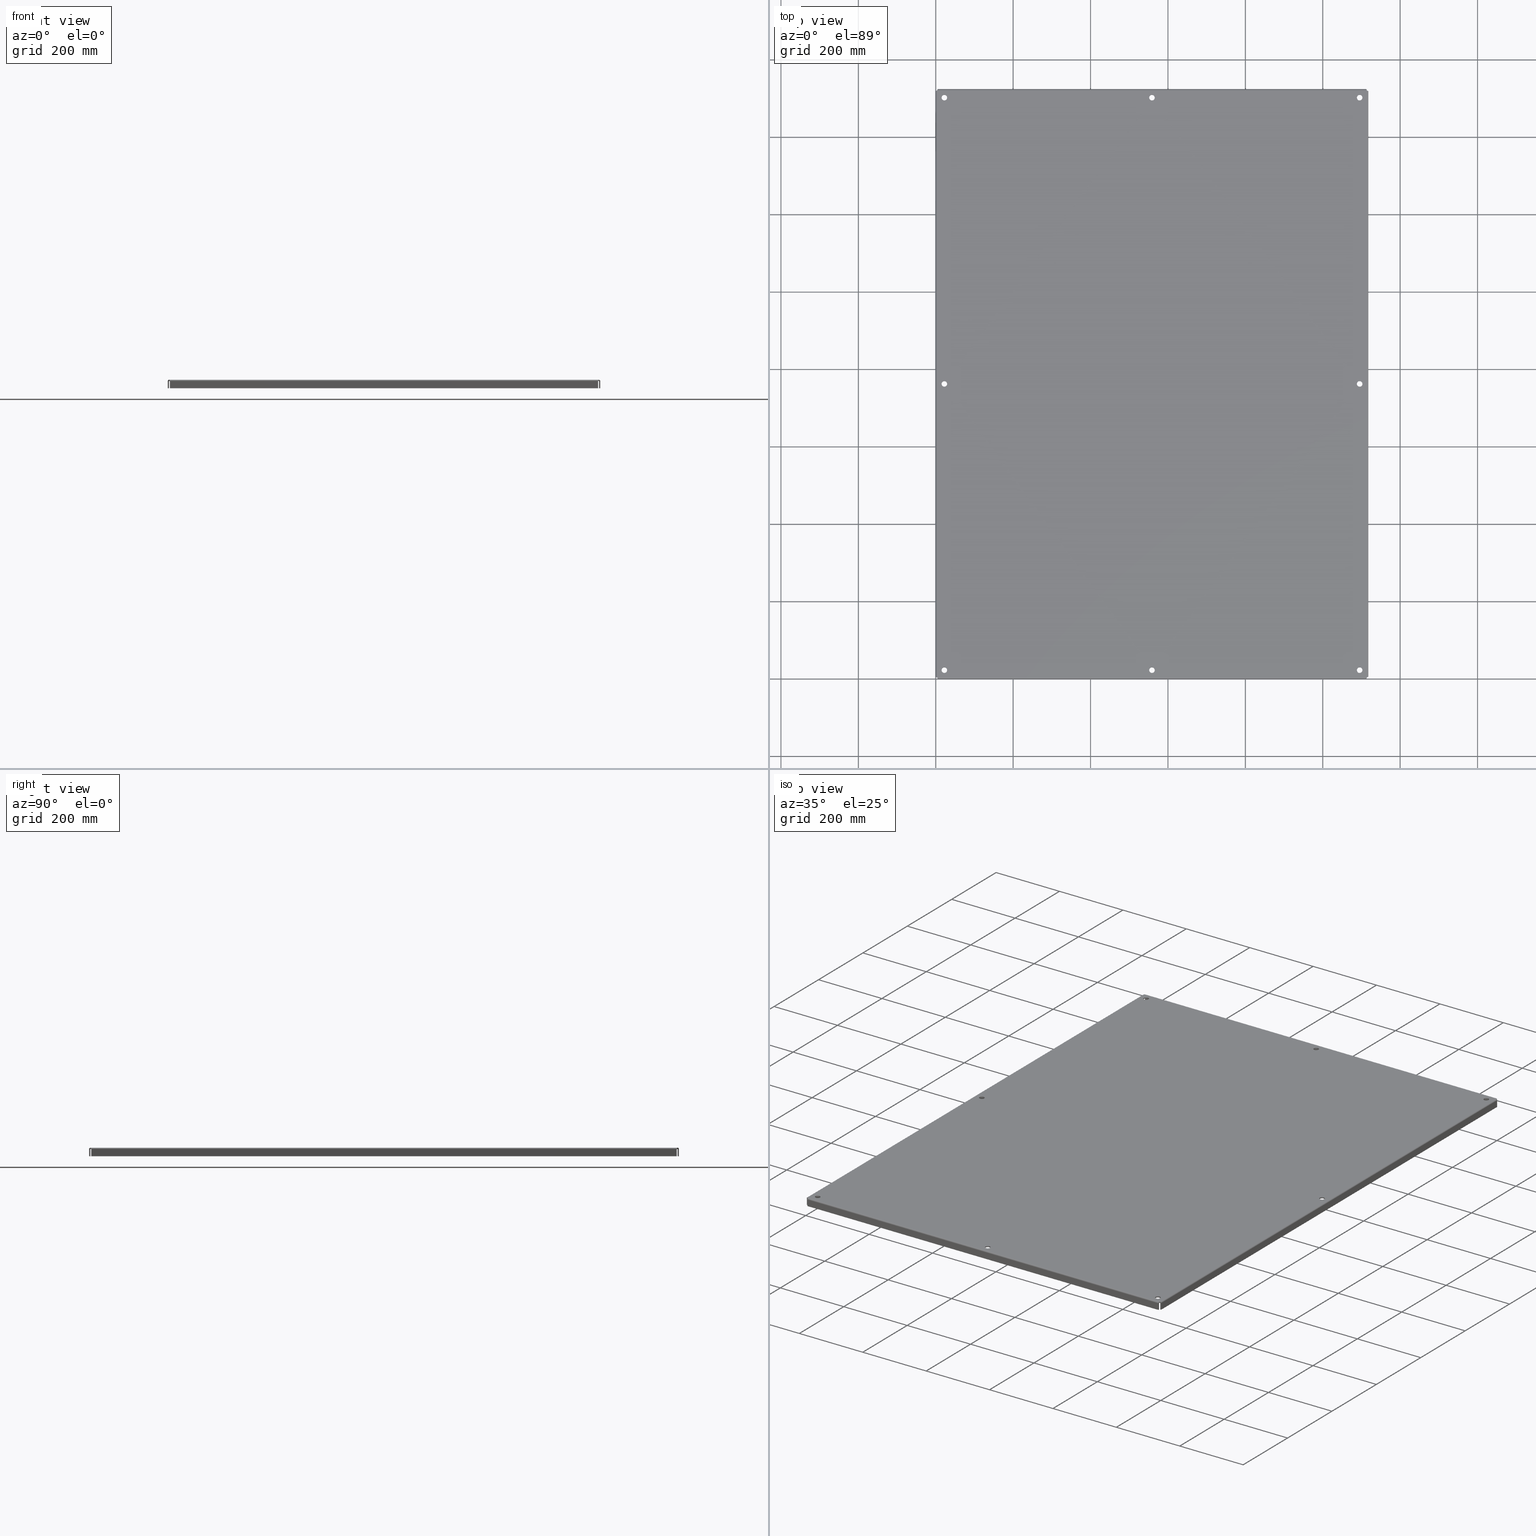
[diagram: canonical four-view strip — front | top / right | iso, engineering-drawing reading convention]
A machine part, canonical four-view strip (front | top / right | iso — engineering-drawing reading convention). The complete STEP part file that produces these views, byte-faithful:
ISO-10303-21;
HEADER;
/****************************************************************
 * Generated by software with PDElib inside                    *
 * PDElib Version v51a, created Wed 07/06/2011                  *
 * ITI Transcendata (http://www.transcendata.com/)              *
 ****************************************************************/
FILE_DESCRIPTION((''),'2;1');
FILE_NAME('C:\\W_Vault\\W-India\\Panels\\WA_F1G & WA_F2G\\WA_P_F_G_DXF STP\\WA72P48F1G.stp','2013-06-19T20:33:03',('ypadmaraja'),(''),'Autodesk Inventor 2012','Autodesk Inventor 2012','');
FILE_SCHEMA(('AUTOMOTIVE_DESIGN { 1 0 10303 214 1 1 1 1 }'));
ENDSEC;
DATA;
#5=APPLICATION_CONTEXT('automotive design');
#6=APPLICATION_PROTOCOL_DEFINITION('International Standard','automotive_design',2001,#5);
#7=PRODUCT_CONTEXT('',#5,'mechanical');
#8=PRODUCT('WA_P_F_G','WA_P_F_G',$,(#7));
#9=PRODUCT_RELATED_PRODUCT_CATEGORY('part',$,(#8));
#10=PRODUCT_DEFINITION_FORMATION('',$,#8);
#11=PRODUCT_DEFINITION_CONTEXT('part definition',#5,'design');
#12=PRODUCT_DEFINITION('',$,#10,#11);
#18=(NAMED_UNIT(*)PLANE_ANGLE_UNIT()SI_UNIT($,.RADIAN.));
#19=DIMENSIONAL_EXPONENTS(0.0,0.0,0.0,0.0,0.0,0.0,0.0);
#20=PLANE_ANGLE_MEASURE_WITH_UNIT(PLANE_ANGLE_MEASURE(0.0174532925),#18);
#24=(CONVERSION_BASED_UNIT('DEGREE',#20)NAMED_UNIT(#19)PLANE_ANGLE_UNIT());
#28=(NAMED_UNIT(*)SI_UNIT($,.STERADIAN.)SOLID_ANGLE_UNIT());
#32=(LENGTH_UNIT()NAMED_UNIT(*)SI_UNIT(.CENTI.,.METRE.));
#33=DIMENSIONAL_EXPONENTS(1.0,0.0,0.0,0.0,0.0,0.0,0.0);
#34=LENGTH_MEASURE_WITH_UNIT(LENGTH_MEASURE(2.54),#32);
#38=(CONVERSION_BASED_UNIT('INCH',#34)LENGTH_UNIT()NAMED_UNIT(#33));
#40=UNCERTAINTY_MEASURE_WITH_UNIT(LENGTH_MEASURE(0.000393700787402),#38,'DISTANCE_ACCURACY_VALUE','');
#42=(GEOMETRIC_REPRESENTATION_CONTEXT(3)GLOBAL_UNCERTAINTY_ASSIGNED_CONTEXT((#40))GLOBAL_UNIT_ASSIGNED_CONTEXT((#24,#28,#38))REPRESENTATION_CONTEXT('None','None'));
#43=AXIS2_PLACEMENT_3D('',#44,#45,#46);
#44=CARTESIAN_POINT('',(0.0,0.0,0.0));
#45=DIRECTION('',(0.0,0.0,1.0));
#46=DIRECTION('',(1.0,0.0,0.0));
#47=SHAPE_REPRESENTATION('',(#43),#42);
#48=PRODUCT_DEFINITION_SHAPE('','',#12);
#49=SHAPE_DEFINITION_REPRESENTATION(#48,#47);
#55=(NAMED_UNIT(*)PLANE_ANGLE_UNIT()SI_UNIT($,.RADIAN.));
#56=DIMENSIONAL_EXPONENTS(0.0,0.0,0.0,0.0,0.0,0.0,0.0);
#57=PLANE_ANGLE_MEASURE_WITH_UNIT(PLANE_ANGLE_MEASURE(0.0174532925),#55);
#61=(CONVERSION_BASED_UNIT('DEGREE',#57)NAMED_UNIT(#56)PLANE_ANGLE_UNIT());
#65=(NAMED_UNIT(*)SI_UNIT($,.STERADIAN.)SOLID_ANGLE_UNIT());
#69=(LENGTH_UNIT()NAMED_UNIT(*)SI_UNIT(.MILLI.,.METRE.));
#71=UNCERTAINTY_MEASURE_WITH_UNIT(LENGTH_MEASURE(0.000001),#69,'DISTANCE_ACCURACY_VALUE','');
#73=(GEOMETRIC_REPRESENTATION_CONTEXT(3)GLOBAL_UNCERTAINTY_ASSIGNED_CONTEXT((#71))GLOBAL_UNIT_ASSIGNED_CONTEXT((#61,#65,#69))REPRESENTATION_CONTEXT('','3D'));
#74=CARTESIAN_POINT('',(22.000000000000043,0.874999999999976,0.0625));
#75=DIRECTION('',(0.0,0.0,1.0));
#76=DIRECTION('',(1.0,0.0,0.0));
#77=AXIS2_PLACEMENT_3D('',#74,#75,#76);
#78=CYLINDRICAL_SURFACE('',#77,0.2815);
#79=CARTESIAN_POINT('',(22.28150000000004,0.874999999999976,0.125));
#80=VERTEX_POINT('',#79);
#81=CARTESIAN_POINT('',(22.000000000000043,0.874999999999976,0.125));
#82=DIRECTION('',(0.0,0.0,-1.0));
#83=DIRECTION('',(1.0,0.0,0.0));
#84=AXIS2_PLACEMENT_3D('',#81,#82,#83);
#85=CIRCLE('',#84,0.2815);
#86=EDGE_CURVE('',#80,#80,#85,.T.);
#87=ORIENTED_EDGE('',*,*,#86,.F.);
#88=EDGE_LOOP('',(#87));
#89=FACE_OUTER_BOUND('',#88,.T.);
#90=CARTESIAN_POINT('',(22.28150000000004,0.874999999999976,0.0));
#91=VERTEX_POINT('',#90);
#92=CARTESIAN_POINT('',(22.000000000000043,0.874999999999976,0.0));
#93=DIRECTION('',(0.0,0.0,1.0));
#94=DIRECTION('',(1.0,0.0,0.0));
#95=AXIS2_PLACEMENT_3D('',#92,#93,#94);
#96=CIRCLE('',#95,0.2815);
#97=EDGE_CURVE('',#91,#91,#96,.T.);
#98=ORIENTED_EDGE('',*,*,#97,.F.);
#99=EDGE_LOOP('',(#98));
#100=FACE_BOUND('',#99,.T.);
#101=ADVANCED_FACE('',(#89,#100),#78,.F.);
#102=CARTESIAN_POINT('',(22.0,59.124999999999993,0.0625));
#103=DIRECTION('',(0.0,0.0,1.0));
#104=DIRECTION('',(1.0,0.0,0.0));
#105=AXIS2_PLACEMENT_3D('',#102,#103,#104);
#106=CYLINDRICAL_SURFACE('',#105,0.2815);
#107=CARTESIAN_POINT('',(22.281499999999998,59.124999999999993,0.125));
#108=VERTEX_POINT('',#107);
#109=CARTESIAN_POINT('',(22.0,59.124999999999993,0.125));
#110=DIRECTION('',(0.0,0.0,-1.0));
#111=DIRECTION('',(1.0,0.0,0.0));
#112=AXIS2_PLACEMENT_3D('',#109,#110,#111);
#113=CIRCLE('',#112,0.2815);
#114=EDGE_CURVE('',#108,#108,#113,.T.);
#115=ORIENTED_EDGE('',*,*,#114,.F.);
#116=EDGE_LOOP('',(#115));
#117=FACE_OUTER_BOUND('',#116,.T.);
#118=CARTESIAN_POINT('',(22.281499999999998,59.124999999999993,0.0));
#119=VERTEX_POINT('',#118);
#120=CARTESIAN_POINT('',(22.0,59.124999999999993,0.0));
#121=DIRECTION('',(0.0,0.0,1.0));
#122=DIRECTION('',(1.0,0.0,0.0));
#123=AXIS2_PLACEMENT_3D('',#120,#121,#122);
#124=CIRCLE('',#123,0.2815);
#125=EDGE_CURVE('',#119,#119,#124,.T.);
#126=ORIENTED_EDGE('',*,*,#125,.F.);
#127=EDGE_LOOP('',(#126));
#128=FACE_BOUND('',#127,.T.);
#129=ADVANCED_FACE('',(#117,#128),#106,.F.);
#130=CARTESIAN_POINT('',(43.125,30.000000000000004,0.0625));
#131=DIRECTION('',(0.0,0.0,1.0));
#132=DIRECTION('',(1.0,0.0,0.0));
#133=AXIS2_PLACEMENT_3D('',#130,#131,#132);
#134=CYLINDRICAL_SURFACE('',#133,0.2815);
#135=CARTESIAN_POINT('',(43.406500000000001,30.000000000000004,0.125));
#136=VERTEX_POINT('',#135);
#137=CARTESIAN_POINT('',(43.125,30.000000000000004,0.125));
#138=DIRECTION('',(0.0,0.0,-1.0));
#139=DIRECTION('',(1.0,0.0,0.0));
#140=AXIS2_PLACEMENT_3D('',#137,#138,#139);
#141=CIRCLE('',#140,0.2815);
#142=EDGE_CURVE('',#136,#136,#141,.T.);
#143=ORIENTED_EDGE('',*,*,#142,.F.);
#144=EDGE_LOOP('',(#143));
#145=FACE_OUTER_BOUND('',#144,.T.);
#146=CARTESIAN_POINT('',(43.406500000000001,30.000000000000004,0.0));
#147=VERTEX_POINT('',#146);
#148=CARTESIAN_POINT('',(43.125,30.000000000000004,0.0));
#149=DIRECTION('',(0.0,0.0,1.0));
#150=DIRECTION('',(1.0,0.0,0.0));
#151=AXIS2_PLACEMENT_3D('',#148,#149,#150);
#152=CIRCLE('',#151,0.2815);
#153=EDGE_CURVE('',#147,#147,#152,.T.);
#154=ORIENTED_EDGE('',*,*,#153,.F.);
#155=EDGE_LOOP('',(#154));
#156=FACE_BOUND('',#155,.T.);
#157=ADVANCED_FACE('',(#145,#156),#134,.F.);
#158=CARTESIAN_POINT('',(0.874999999999991,29.999999999999996,0.0625));
#159=DIRECTION('',(0.0,0.0,1.0));
#160=DIRECTION('',(1.0,0.0,0.0));
#161=AXIS2_PLACEMENT_3D('',#158,#159,#160);
#162=CYLINDRICAL_SURFACE('',#161,0.2815);
#163=CARTESIAN_POINT('',(1.156499999999991,29.999999999999996,0.125));
#164=VERTEX_POINT('',#163);
#165=CARTESIAN_POINT('',(0.874999999999991,29.999999999999996,0.125));
#166=DIRECTION('',(0.0,0.0,-1.0));
#167=DIRECTION('',(1.0,0.0,0.0));
#168=AXIS2_PLACEMENT_3D('',#165,#166,#167);
#169=CIRCLE('',#168,0.2815);
#170=EDGE_CURVE('',#164,#164,#169,.T.);
#171=ORIENTED_EDGE('',*,*,#170,.F.);
#172=EDGE_LOOP('',(#171));
#173=FACE_OUTER_BOUND('',#172,.T.);
#174=CARTESIAN_POINT('',(1.156499999999991,29.999999999999996,0.0));
#175=VERTEX_POINT('',#174);
#176=CARTESIAN_POINT('',(0.874999999999991,29.999999999999996,0.0));
#177=DIRECTION('',(0.0,0.0,1.0));
#178=DIRECTION('',(1.0,0.0,0.0));
#179=AXIS2_PLACEMENT_3D('',#176,#177,#178);
#180=CIRCLE('',#179,0.2815);
#181=EDGE_CURVE('',#175,#175,#180,.T.);
#182=ORIENTED_EDGE('',*,*,#181,.F.);
#183=EDGE_LOOP('',(#182));
#184=FACE_BOUND('',#183,.T.);
#185=ADVANCED_FACE('',(#173,#184),#162,.F.);
#186=CARTESIAN_POINT('',(43.124999999999986,59.124999999999986,0.0625));
#187=DIRECTION('',(0.0,0.0,1.0));
#188=DIRECTION('',(1.0,0.0,0.0));
#189=AXIS2_PLACEMENT_3D('',#186,#187,#188);
#190=CYLINDRICAL_SURFACE('',#189,0.2815);
#191=CARTESIAN_POINT('',(43.406499999999994,59.124999999999986,0.125));
#192=VERTEX_POINT('',#191);
#193=CARTESIAN_POINT('',(43.124999999999986,59.124999999999986,0.125));
#194=DIRECTION('',(0.0,0.0,-1.0));
#195=DIRECTION('',(1.0,0.0,0.0));
#196=AXIS2_PLACEMENT_3D('',#193,#194,#195);
#197=CIRCLE('',#196,0.2815);
#198=EDGE_CURVE('',#192,#192,#197,.T.);
#199=ORIENTED_EDGE('',*,*,#198,.F.);
#200=EDGE_LOOP('',(#199));
#201=FACE_OUTER_BOUND('',#200,.T.);
#202=CARTESIAN_POINT('',(43.406499999999994,59.124999999999986,0.0));
#203=VERTEX_POINT('',#202);
#204=CARTESIAN_POINT('',(43.124999999999986,59.124999999999986,0.0));
#205=DIRECTION('',(0.0,0.0,1.0));
#206=DIRECTION('',(1.0,0.0,0.0));
#207=AXIS2_PLACEMENT_3D('',#204,#205,#206);
#208=CIRCLE('',#207,0.2815);
#209=EDGE_CURVE('',#203,#203,#208,.T.);
#210=ORIENTED_EDGE('',*,*,#209,.F.);
#211=EDGE_LOOP('',(#210));
#212=FACE_BOUND('',#211,.T.);
#213=ADVANCED_FACE('',(#201,#212),#190,.F.);
#214=CARTESIAN_POINT('',(0.874999999999982,59.124999999999993,0.0625));
#215=DIRECTION('',(0.0,0.0,1.0));
#216=DIRECTION('',(1.0,0.0,0.0));
#217=AXIS2_PLACEMENT_3D('',#214,#215,#216);
#218=CYLINDRICAL_SURFACE('',#217,0.2815);
#219=CARTESIAN_POINT('',(1.156499999999982,59.124999999999993,0.125));
#220=VERTEX_POINT('',#219);
#221=CARTESIAN_POINT('',(0.874999999999982,59.124999999999993,0.125));
#222=DIRECTION('',(0.0,0.0,-1.0));
#223=DIRECTION('',(1.0,0.0,0.0));
#224=AXIS2_PLACEMENT_3D('',#221,#222,#223);
#225=CIRCLE('',#224,0.2815);
#226=EDGE_CURVE('',#220,#220,#225,.T.);
#227=ORIENTED_EDGE('',*,*,#226,.F.);
#228=EDGE_LOOP('',(#227));
#229=FACE_OUTER_BOUND('',#228,.T.);
#230=CARTESIAN_POINT('',(1.156499999999982,59.124999999999993,0.0));
#231=VERTEX_POINT('',#230);
#232=CARTESIAN_POINT('',(0.874999999999982,59.124999999999993,0.0));
#233=DIRECTION('',(0.0,0.0,1.0));
#234=DIRECTION('',(1.0,0.0,0.0));
#235=AXIS2_PLACEMENT_3D('',#232,#233,#234);
#236=CIRCLE('',#235,0.2815);
#237=EDGE_CURVE('',#231,#231,#236,.T.);
#238=ORIENTED_EDGE('',*,*,#237,.F.);
#239=EDGE_LOOP('',(#238));
#240=FACE_BOUND('',#239,.T.);
#241=ADVANCED_FACE('',(#229,#240),#218,.F.);
#242=CARTESIAN_POINT('',(0.874999999999976,0.875,0.0625));
#243=DIRECTION('',(0.0,0.0,1.0));
#244=DIRECTION('',(1.0,0.0,0.0));
#245=AXIS2_PLACEMENT_3D('',#242,#243,#244);
#246=CYLINDRICAL_SURFACE('',#245,0.2815);
#247=CARTESIAN_POINT('',(1.156499999999976,0.875,0.125));
#248=VERTEX_POINT('',#247);
#249=CARTESIAN_POINT('',(0.874999999999976,0.875,0.125));
#250=DIRECTION('',(0.0,0.0,-1.0));
#251=DIRECTION('',(1.0,0.0,0.0));
#252=AXIS2_PLACEMENT_3D('',#249,#250,#251);
#253=CIRCLE('',#252,0.2815);
#254=EDGE_CURVE('',#248,#248,#253,.T.);
#255=ORIENTED_EDGE('',*,*,#254,.F.);
#256=EDGE_LOOP('',(#255));
#257=FACE_OUTER_BOUND('',#256,.T.);
#258=CARTESIAN_POINT('',(1.156499999999976,0.875,0.0));
#259=VERTEX_POINT('',#258);
#260=CARTESIAN_POINT('',(0.874999999999976,0.875,0.0));
#261=DIRECTION('',(0.0,0.0,1.0));
#262=DIRECTION('',(1.0,0.0,0.0));
#263=AXIS2_PLACEMENT_3D('',#260,#261,#262);
#264=CIRCLE('',#263,0.2815);
#265=EDGE_CURVE('',#259,#259,#264,.T.);
#266=ORIENTED_EDGE('',*,*,#265,.F.);
#267=EDGE_LOOP('',(#266));
#268=FACE_BOUND('',#267,.T.);
#269=ADVANCED_FACE('',(#257,#268),#246,.F.);
#270=CARTESIAN_POINT('',(43.124999999999986,0.875,0.0625));
#271=DIRECTION('',(0.0,0.0,1.0));
#272=DIRECTION('',(1.0,0.0,0.0));
#273=AXIS2_PLACEMENT_3D('',#270,#271,#272);
#274=CYLINDRICAL_SURFACE('',#273,0.2815);
#275=CARTESIAN_POINT('',(43.406499999999994,0.875,0.125));
#276=VERTEX_POINT('',#275);
#277=CARTESIAN_POINT('',(43.124999999999986,0.875,0.125));
#278=DIRECTION('',(0.0,0.0,-1.0));
#279=DIRECTION('',(1.0,0.0,0.0));
#280=AXIS2_PLACEMENT_3D('',#277,#278,#279);
#281=CIRCLE('',#280,0.2815);
#282=EDGE_CURVE('',#276,#276,#281,.T.);
#283=ORIENTED_EDGE('',*,*,#282,.F.);
#284=EDGE_LOOP('',(#283));
#285=FACE_OUTER_BOUND('',#284,.T.);
#286=CARTESIAN_POINT('',(43.406499999999994,0.875,0.0));
#287=VERTEX_POINT('',#286);
#288=CARTESIAN_POINT('',(43.124999999999986,0.875,0.0));
#289=DIRECTION('',(0.0,0.0,1.0));
#290=DIRECTION('',(1.0,0.0,0.0));
#291=AXIS2_PLACEMENT_3D('',#288,#289,#290);
#292=CIRCLE('',#291,0.2815);
#293=EDGE_CURVE('',#287,#287,#292,.T.);
#294=ORIENTED_EDGE('',*,*,#293,.F.);
#295=EDGE_LOOP('',(#294));
#296=FACE_BOUND('',#295,.T.);
#297=ADVANCED_FACE('',(#285,#296),#274,.F.);
#298=CARTESIAN_POINT('',(43.859400000000008,59.786611652351674,-0.0156));
#299=DIRECTION('',(-9.324708E-017,1.0,0.0));
#300=DIRECTION('',(1.0,0.0,4.032876E-013));
#301=AXIS2_PLACEMENT_3D('',#298,#299,#300);
#302=CYLINDRICAL_SURFACE('',#301,0.140599999999988);
#303=CARTESIAN_POINT('',(43.999999999999986,59.786611652351674,-0.015599999999968));
#304=VERTEX_POINT('',#303);
#305=CARTESIAN_POINT('',(44.000000000000014,0.213388347648325,-0.015599999999985));
#306=VERTEX_POINT('',#305);
#307=CARTESIAN_POINT('',(43.999999999999993,59.786611652351674,-0.015599999999985));
#308=DIRECTION('',(0.0,-1.0,0.0));
#309=VECTOR('',#308,59.573223304703347);
#310=LINE('',#307,#309);
#311=EDGE_CURVE('',#304,#306,#310,.T.);
#312=ORIENTED_EDGE('',*,*,#311,.F.);
#313=CARTESIAN_POINT('',(43.859400000000001,59.859400000000008,0.125));
#314=VERTEX_POINT('',#313);
#315=CARTESIAN_POINT('',(43.859400000000008,59.859400000000015,0.125));
#316=CARTESIAN_POINT('',(43.901467421628062,59.845535552828906,0.125));
#317=CARTESIAN_POINT('',(43.943063501461324,59.83167110565779,0.104805586453239));
#318=CARTESIAN_POINT('',(43.969295107484136,59.817806658486688,0.072082524297426));
#319=CARTESIAN_POINT('',(43.988968812001247,59.807408323108348,0.047540227680567));
#320=CARTESIAN_POINT('',(43.999999999999986,59.797009987730014,0.015950566221115));
#321=CARTESIAN_POINT('',(44.000000000000007,59.786611652351674,-0.015599999999927));
#322=B_SPLINE_CURVE_WITH_KNOTS('',3,(#315,#316,#317,#318,#319,#320,#321),.UNSPECIFIED.,.F.,.U.,(4,3,4),(0.0,0.897597901025439,1.570796326794518),.UNSPECIFIED.);
#323=EDGE_CURVE('',#314,#304,#322,.T.);
#324=ORIENTED_EDGE('',*,*,#323,.F.);
#325=CARTESIAN_POINT('',(43.859400000000008,0.1406,0.125));
#326=VERTEX_POINT('',#325);
#327=CARTESIAN_POINT('',(43.859400000000001,0.140599999999999,0.125));
#328=DIRECTION('',(0.0,1.0,0.0));
#329=VECTOR('',#328,59.718800000000009);
#330=LINE('',#327,#329);
#331=EDGE_CURVE('',#326,#314,#330,.T.);
#332=ORIENTED_EDGE('',*,*,#331,.F.);
#333=CARTESIAN_POINT('',(44.000000000000028,0.213388347648326,-0.015599999999991));
#334=CARTESIAN_POINT('',(44.000000000000028,0.199523900477216,0.026467421628086));
#335=CARTESIAN_POINT('',(43.979805707770929,0.185659453306106,0.068063647025484));
#336=CARTESIAN_POINT('',(43.947082628283987,0.171795006134996,0.094295232253428));
#337=CARTESIAN_POINT('',(43.922540318668773,0.161396670756665,0.113968921174384));
#338=CARTESIAN_POINT('',(43.890950566221044,0.150998335378334,0.125000000000024));
#339=CARTESIAN_POINT('',(43.85939999999998,0.140600000000002,0.125000000000018));
#340=B_SPLINE_CURVE_WITH_KNOTS('',3,(#333,#334,#335,#336,#337,#338,#339),.UNSPECIFIED.,.F.,.U.,(4,3,4),(0.0,0.8975979010257,1.570796326794921),.UNSPECIFIED.);
#341=EDGE_CURVE('',#306,#326,#340,.T.);
#342=ORIENTED_EDGE('',*,*,#341,.F.);
#343=EDGE_LOOP('',(#312,#324,#332,#342));
#344=FACE_OUTER_BOUND('',#343,.T.);
#345=ADVANCED_FACE('',(#344),#302,.T.);
#346=CARTESIAN_POINT('',(43.875000000000021,29.999999999999996,-0.338477516194013));
#347=DIRECTION('',(1.0,0.0,0.0));
#348=DIRECTION('',(0.0,0.0,-1.0));
#349=AXIS2_PLACEMENT_3D('',#346,#347,#348);
#350=PLANE('',#349);
#351=CARTESIAN_POINT('',(43.875000000000021,0.213388347648325,-0.01559999999999));
#352=VERTEX_POINT('',#351);
#353=CARTESIAN_POINT('',(43.874999999999986,59.786611652351674,-0.015599999999973));
#354=VERTEX_POINT('',#353);
#355=CARTESIAN_POINT('',(43.875000000000014,0.213388347648326,-0.015599999999996));
#356=DIRECTION('',(0.0,1.0,0.0));
#357=VECTOR('',#356,59.573223304703347);
#358=LINE('',#355,#357);
#359=EDGE_CURVE('',#352,#354,#358,.T.);
#360=ORIENTED_EDGE('',*,*,#359,.T.);
#361=CARTESIAN_POINT('',(43.875000000000028,59.786611652351674,-0.749999999999972));
#362=VERTEX_POINT('',#361);
#363=CARTESIAN_POINT('',(43.874999999999986,59.786611652351674,-0.015599999999973));
#364=DIRECTION('',(0.0,0.0,-1.0));
#365=VECTOR('',#364,0.734399999999999);
#366=LINE('',#363,#365);
#367=EDGE_CURVE('',#354,#362,#366,.T.);
#368=ORIENTED_EDGE('',*,*,#367,.T.);
#369=CARTESIAN_POINT('',(43.875000000000064,0.213388347648329,-0.749999999999995));
#370=VERTEX_POINT('',#369);
#371=CARTESIAN_POINT('',(43.875000000000028,59.786611652351674,-0.749999999999972));
#372=DIRECTION('',(0.0,-1.0,0.0));
#373=VECTOR('',#372,59.57322330470334);
#374=LINE('',#371,#373);
#375=EDGE_CURVE('',#362,#370,#374,.T.);
#376=ORIENTED_EDGE('',*,*,#375,.T.);
#377=CARTESIAN_POINT('',(43.875000000000014,0.213388347648329,-0.015599999999996));
#378=DIRECTION('',(0.0,0.0,-1.0));
#379=VECTOR('',#378,0.734399999999999);
#380=LINE('',#377,#379);
#381=EDGE_CURVE('',#352,#370,#380,.T.);
#382=ORIENTED_EDGE('',*,*,#381,.F.);
#383=EDGE_LOOP('',(#360,#368,#376,#382));
#384=FACE_OUTER_BOUND('',#383,.T.);
#385=ADVANCED_FACE('',(#384),#350,.F.);
#386=CARTESIAN_POINT('',(43.875000000000064,0.213388347648329,-0.749999999999995));
#387=DIRECTION('',(0.0,-1.0,0.0));
#388=DIRECTION('',(-1.0,0.0,0.0));
#389=AXIS2_PLACEMENT_3D('',#386,#387,#388);
#390=PLANE('',#389);
#391=CARTESIAN_POINT('',(44.000000000000064,0.213388347648329,-0.749999999999989));
#392=VERTEX_POINT('',#391);
#393=CARTESIAN_POINT('',(44.000000000000057,0.213388347648329,-0.749999999999989));
#394=DIRECTION('',(0.0,0.0,1.0));
#395=VECTOR('',#394,0.734399999999999);
#396=LINE('',#393,#395);
#397=EDGE_CURVE('',#392,#306,#396,.T.);
#398=ORIENTED_EDGE('',*,*,#397,.T.);
#399=CARTESIAN_POINT('',(43.875000000000021,0.213388347648325,-0.01559999999999));
#400=DIRECTION('',(1.0,0.0,0.0));
#401=VECTOR('',#400,0.124999999999993);
#402=LINE('',#399,#401);
#403=EDGE_CURVE('',#352,#306,#402,.T.);
#404=ORIENTED_EDGE('',*,*,#403,.F.);
#405=ORIENTED_EDGE('',*,*,#381,.T.);
#406=CARTESIAN_POINT('',(43.875000000000064,0.213388347648329,-0.749999999999995));
#407=DIRECTION('',(1.0,0.0,0.0));
#408=VECTOR('',#407,0.125);
#409=LINE('',#406,#408);
#410=EDGE_CURVE('',#370,#392,#409,.T.);
#411=ORIENTED_EDGE('',*,*,#410,.T.);
#412=EDGE_LOOP('',(#398,#404,#405,#411));
#413=FACE_OUTER_BOUND('',#412,.T.);
#414=ADVANCED_FACE('',(#413),#390,.T.);
#415=CARTESIAN_POINT('',(43.85939999999998,0.1406,0.125000000000018));
#416=CARTESIAN_POINT('',(43.859399999999987,0.1406,0.083333333333345));
#417=CARTESIAN_POINT('',(43.859399999999994,0.1406,0.041666666666673));
#418=CARTESIAN_POINT('',(43.859400000000008,0.1406,2.731848E-018));
#419=CARTESIAN_POINT('',(43.890950566221036,0.150998335378332,0.125000000000025));
#420=CARTESIAN_POINT('',(43.881600588085362,0.150998335378332,0.08333333333335));
#421=CARTESIAN_POINT('',(43.872250609949681,0.150998335378332,0.041666666666676));
#422=CARTESIAN_POINT('',(43.862900631814007,0.150998335378332,7.986834E-016));
#423=CARTESIAN_POINT('',(43.964659988599095,0.175261117927774,0.099260816073533));
#424=CARTESIAN_POINT('',(43.933466298284046,0.175261117927774,0.065221930323908));
#425=CARTESIAN_POINT('',(43.902272607969003,0.175261117927774,0.031183044574283));
#426=CARTESIAN_POINT('',(43.871078917653954,0.175261117927774,-0.002855841175342));
#427=CARTESIAN_POINT('',(44.000000000000028,0.199523900477216,0.026467421628086));
#428=CARTESIAN_POINT('',(43.95833333333335,0.199523900477216,0.014000784113835));
#429=CARTESIAN_POINT('',(43.916666666666679,0.199523900477216,0.001534146599585));
#430=CARTESIAN_POINT('',(43.875000000000007,0.199523900477216,-0.010932490914665));
#431=CARTESIAN_POINT('',(44.000000000000028,0.213388347648326,-0.015599999999991));
#432=CARTESIAN_POINT('',(43.95833333333335,0.213388347648326,-0.015599999999994));
#433=CARTESIAN_POINT('',(43.916666666666679,0.213388347648326,-0.015599999999996));
#434=CARTESIAN_POINT('',(43.875000000000007,0.213388347648326,-0.015599999999999));
#435=B_SPLINE_SURFACE_WITH_KNOTS('',3,3,((#415,#419,#423,#427,#431),(#416,#420,#424,#428,#432),(#417,#421,#425,#429,#433),(#418,#422,#426,#430,#434)),.UNSPECIFIED.,.F.,.F.,.F.,(4,4),(4,1,4),(-0.3175,4.596353E-014),(-0.288776537863598,-0.165015164493484,0.0),.UNSPECIFIED.);
#436=ORIENTED_EDGE('',*,*,#341,.T.);
#437=CARTESIAN_POINT('',(43.859400000000001,0.1406,0.030738501310888));
#438=VERTEX_POINT('',#437);
#439=CARTESIAN_POINT('',(43.859400000000008,0.1406,0.030738501310888));
#440=DIRECTION('',(0.0,0.0,1.0));
#441=VECTOR('',#440,0.094261498689112);
#442=LINE('',#439,#441);
#443=EDGE_CURVE('',#438,#326,#442,.T.);
#444=ORIENTED_EDGE('',*,*,#443,.F.);
#445=CARTESIAN_POINT('',(43.859400000000008,0.1406,0.0));
#446=VERTEX_POINT('',#445);
#447=CARTESIAN_POINT('',(43.859400000000008,0.1406,0.0));
#448=DIRECTION('',(0.0,0.0,1.0));
#449=VECTOR('',#448,0.030738501310888);
#450=LINE('',#447,#449);
#451=EDGE_CURVE('',#446,#438,#450,.T.);
#452=ORIENTED_EDGE('',*,*,#451,.F.);
#453=CARTESIAN_POINT('',(43.859400000000008,0.1406,0.0));
#454=CARTESIAN_POINT('',(43.862900631814007,0.150998335378332,7.976996E-016));
#455=CARTESIAN_POINT('',(43.866405611459697,0.161396670756664,-0.001223931932289));
#456=CARTESIAN_POINT('',(43.869128655769778,0.171795006134996,-0.003406787886534));
#457=CARTESIAN_POINT('',(43.872759381516545,0.185659453306106,-0.006317262492195));
#458=CARTESIAN_POINT('',(43.875000000000007,0.199523900477216,-0.010932490914665));
#459=CARTESIAN_POINT('',(43.875000000000007,0.213388347648326,-0.015599999999999));
#460=B_SPLINE_CURVE_WITH_KNOTS('',3,(#453,#454,#455,#456,#457,#458,#459),.UNSPECIFIED.,.F.,.U.,(4,3,4),(0.0,0.673198425769252,1.570796326794921),.UNSPECIFIED.);
#461=EDGE_CURVE('',#446,#352,#460,.T.);
#462=ORIENTED_EDGE('',*,*,#461,.T.);
#463=ORIENTED_EDGE('',*,*,#403,.T.);
#464=EDGE_LOOP('',(#436,#444,#452,#462,#463));
#465=FACE_OUTER_BOUND('',#464,.T.);
#466=ADVANCED_FACE('',(#465),#435,.T.);
#467=CARTESIAN_POINT('',(44.000000000000007,59.786611652351674,-0.015599999999927));
#468=CARTESIAN_POINT('',(43.958333333333329,59.786611652351674,-0.015599999999949));
#469=CARTESIAN_POINT('',(43.916666666666664,59.786611652351674,-0.01559999999997));
#470=CARTESIAN_POINT('',(43.874999999999993,59.786611652351674,-0.015599999999992));
#471=CARTESIAN_POINT('',(43.999999999999986,59.797009987730014,0.015950566221115));
#472=CARTESIAN_POINT('',(43.958333333333321,59.797009987730014,0.006600588085412));
#473=CARTESIAN_POINT('',(43.916666666666657,59.797009987730014,-0.002749390050292));
#474=CARTESIAN_POINT('',(43.874999999999993,59.797009987730014,-0.012099368185996));
#475=CARTESIAN_POINT('',(43.974260561336273,59.821272770279464,0.089659776293168));
#476=CARTESIAN_POINT('',(43.940221751077772,59.821272770279464,0.058466148894762));
#477=CARTESIAN_POINT('',(43.906182940819285,59.821272770279464,0.027272521496356));
#478=CARTESIAN_POINT('',(43.872144130560784,59.821272770279464,-0.003921105902049));
#479=CARTESIAN_POINT('',(43.901467421628062,59.845535552828906,0.125));
#480=CARTESIAN_POINT('',(43.889000784113819,59.845535552828906,0.083333333333328));
#481=CARTESIAN_POINT('',(43.876534146599575,59.845535552828906,0.041666666666657));
#482=CARTESIAN_POINT('',(43.864067509085331,59.845535552828906,-1.497326E-014));
#483=CARTESIAN_POINT('',(43.859400000000008,59.859400000000015,0.125));
#484=CARTESIAN_POINT('',(43.859400000000008,59.859400000000015,0.083333333333328));
#485=CARTESIAN_POINT('',(43.859400000000008,59.859400000000015,0.041666666666657));
#486=CARTESIAN_POINT('',(43.859400000000008,59.859400000000015,-1.497326E-014));
#487=B_SPLINE_SURFACE_WITH_KNOTS('',3,3,((#467,#471,#475,#479,#483),(#468,#472,#476,#480,#484),(#469,#473,#477,#481,#485),(#470,#474,#478,#482,#486)),.UNSPECIFIED.,.F.,.F.,.F.,(4,4),(4,1,4),(-0.3175,3.802484E-014),(-0.288776537863541,-0.165015164493452,0.0),.UNSPECIFIED.);
#488=ORIENTED_EDGE('',*,*,#323,.T.);
#489=CARTESIAN_POINT('',(43.874999999999986,59.786611652351674,-0.015599999999973));
#490=DIRECTION('',(1.0,0.0,0.0));
#491=VECTOR('',#490,0.125000000000007);
#492=LINE('',#489,#491);
#493=EDGE_CURVE('',#354,#304,#492,.T.);
#494=ORIENTED_EDGE('',*,*,#493,.F.);
#495=CARTESIAN_POINT('',(43.859400000000001,59.859400000000008,0.0));
#496=VERTEX_POINT('',#495);
#497=CARTESIAN_POINT('',(43.859400000000008,59.859400000000015,0.0));
#498=CARTESIAN_POINT('',(43.864067509085338,59.845535552828906,3.453297E-016));
#499=CARTESIAN_POINT('',(43.868682721357025,59.83167110565779,-0.002240631944021));
#500=CARTESIAN_POINT('',(43.871593198269942,59.817806658486688,-0.005871355767853));
#501=CARTESIAN_POINT('',(43.873776055954629,59.807408323108348,-0.008594398635725));
#502=CARTESIAN_POINT('',(43.875000000000007,59.797009987730021,-0.012099368185989));
#503=CARTESIAN_POINT('',(43.875000000000007,59.786611652351688,-0.015599999999989));
#504=B_SPLINE_CURVE_WITH_KNOTS('',3,(#497,#498,#499,#500,#501,#502,#503),.UNSPECIFIED.,.F.,.U.,(4,3,4),(0.0,0.897597901025555,1.570796326794518),.UNSPECIFIED.);
#505=EDGE_CURVE('',#496,#354,#504,.T.);
#506=ORIENTED_EDGE('',*,*,#505,.F.);
#507=CARTESIAN_POINT('',(43.859400000000008,59.859400000000015,0.030738501310895));
#508=VERTEX_POINT('',#507);
#509=CARTESIAN_POINT('',(43.859400000000001,59.859400000000008,0.0));
#510=DIRECTION('',(0.0,0.0,1.0));
#511=VECTOR('',#510,0.030738501310895);
#512=LINE('',#509,#511);
#513=EDGE_CURVE('',#496,#508,#512,.T.);
#514=ORIENTED_EDGE('',*,*,#513,.T.);
#515=CARTESIAN_POINT('',(43.859400000000001,59.859400000000008,0.030738501310895));
#516=DIRECTION('',(0.0,0.0,1.0));
#517=VECTOR('',#516,0.094261498689105);
#518=LINE('',#515,#517);
#519=EDGE_CURVE('',#508,#314,#518,.T.);
#520=ORIENTED_EDGE('',*,*,#519,.T.);
#521=EDGE_LOOP('',(#488,#494,#506,#514,#520));
#522=FACE_OUTER_BOUND('',#521,.T.);
#523=ADVANCED_FACE('',(#522),#487,.T.);
#524=CARTESIAN_POINT('',(43.874999999999986,59.786611652351674,-0.015599999999973));
#525=DIRECTION('',(0.0,1.0,0.0));
#526=DIRECTION('',(1.0,0.0,0.0));
#527=AXIS2_PLACEMENT_3D('',#524,#525,#526);
#528=PLANE('',#527);
#529=CARTESIAN_POINT('',(44.000000000000036,59.786611652351674,-0.749999999999967));
#530=VERTEX_POINT('',#529);
#531=CARTESIAN_POINT('',(43.999999999999979,59.786611652351674,-0.015599999999968));
#532=DIRECTION('',(0.0,0.0,-1.0));
#533=VECTOR('',#532,0.734399999999999);
#534=LINE('',#531,#533);
#535=EDGE_CURVE('',#304,#530,#534,.T.);
#536=ORIENTED_EDGE('',*,*,#535,.T.);
#537=CARTESIAN_POINT('',(43.875000000000028,59.786611652351674,-0.749999999999972));
#538=DIRECTION('',(1.0,0.0,0.0));
#539=VECTOR('',#538,0.125000000000007);
#540=LINE('',#537,#539);
#541=EDGE_CURVE('',#362,#530,#540,.T.);
#542=ORIENTED_EDGE('',*,*,#541,.F.);
#543=ORIENTED_EDGE('',*,*,#367,.F.);
#544=ORIENTED_EDGE('',*,*,#493,.T.);
#545=EDGE_LOOP('',(#536,#542,#543,#544));
#546=FACE_OUTER_BOUND('',#545,.T.);
#547=ADVANCED_FACE('',(#546),#528,.T.);
#548=CARTESIAN_POINT('',(43.875000000000028,59.786611652351674,-0.749999999999972));
#549=DIRECTION('',(0.0,0.0,-1.0));
#550=DIRECTION('',(-1.0,0.0,0.0));
#551=AXIS2_PLACEMENT_3D('',#548,#549,#550);
#552=PLANE('',#551);
#553=CARTESIAN_POINT('',(44.000000000000028,59.786611652351674,-0.749999999999967));
#554=DIRECTION('',(0.0,-1.0,0.0));
#555=VECTOR('',#554,59.57322330470334);
#556=LINE('',#553,#555);
#557=EDGE_CURVE('',#530,#392,#556,.T.);
#558=ORIENTED_EDGE('',*,*,#557,.T.);
#559=ORIENTED_EDGE('',*,*,#410,.F.);
#560=ORIENTED_EDGE('',*,*,#375,.F.);
#561=ORIENTED_EDGE('',*,*,#541,.T.);
#562=EDGE_LOOP('',(#558,#559,#560,#561));
#563=FACE_OUTER_BOUND('',#562,.T.);
#564=ADVANCED_FACE('',(#563),#552,.T.);
#565=CARTESIAN_POINT('',(44.000000000000021,29.999999999999996,-0.338477516194002));
#566=DIRECTION('',(1.0,0.0,0.0));
#567=DIRECTION('',(0.0,0.0,-1.0));
#568=AXIS2_PLACEMENT_3D('',#565,#566,#567);
#569=PLANE('',#568);
#570=ORIENTED_EDGE('',*,*,#311,.T.);
#571=ORIENTED_EDGE('',*,*,#397,.F.);
#572=ORIENTED_EDGE('',*,*,#557,.F.);
#573=ORIENTED_EDGE('',*,*,#535,.F.);
#574=EDGE_LOOP('',(#570,#571,#572,#573));
#575=FACE_OUTER_BOUND('',#574,.T.);
#576=ADVANCED_FACE('',(#575),#569,.T.);
#577=CARTESIAN_POINT('',(43.859400000000008,0.213388347648326,-0.0156));
#578=DIRECTION('',(-9.324708E-017,1.0,0.0));
#579=DIRECTION('',(1.0,0.0,0.0));
#580=AXIS2_PLACEMENT_3D('',#577,#578,#579);
#581=CYLINDRICAL_SURFACE('',#580,0.015600000000013);
#582=ORIENTED_EDGE('',*,*,#359,.F.);
#583=ORIENTED_EDGE('',*,*,#461,.F.);
#584=CARTESIAN_POINT('',(43.859400000000001,59.859400000000008,0.0));
#585=DIRECTION('',(0.0,-1.0,0.0));
#586=VECTOR('',#585,59.718800000000009);
#587=LINE('',#584,#586);
#588=EDGE_CURVE('',#496,#446,#587,.T.);
#589=ORIENTED_EDGE('',*,*,#588,.F.);
#590=ORIENTED_EDGE('',*,*,#505,.T.);
#591=EDGE_LOOP('',(#582,#583,#589,#590));
#592=FACE_OUTER_BOUND('',#591,.T.);
#593=ADVANCED_FACE('',(#592),#581,.F.);
#594=CARTESIAN_POINT('',(0.213388347648303,59.859400000000008,-0.0156));
#595=DIRECTION('',(-1.0,0.0,0.0));
#596=DIRECTION('',(0.0,1.0,-1.651350E-013));
#597=AXIS2_PLACEMENT_3D('',#594,#595,#596);
#598=CYLINDRICAL_SURFACE('',#597,0.1406);
#599=CARTESIAN_POINT('',(0.213388347648303,59.999999999999993,-0.015600000000024));
#600=VERTEX_POINT('',#599);
#601=CARTESIAN_POINT('',(43.786611652351681,59.999999999999993,-0.015600000000024));
#602=VERTEX_POINT('',#601);
#603=CARTESIAN_POINT('',(0.213388347648305,59.999999999999993,-0.015600000000024));
#604=DIRECTION('',(1.0,0.0,0.0));
#605=VECTOR('',#604,43.573223304703376);
#606=LINE('',#603,#605);
#607=EDGE_CURVE('',#600,#602,#606,.T.);
#608=ORIENTED_EDGE('',*,*,#607,.F.);
#609=CARTESIAN_POINT('',(0.140599999999982,59.859399999999994,0.125));
#610=VERTEX_POINT('',#609);
#611=CARTESIAN_POINT('',(0.14059999999998,59.859400000000008,0.125));
#612=CARTESIAN_POINT('',(0.150998335378312,59.890950566221065,0.125));
#613=CARTESIAN_POINT('',(0.161396670756644,59.922540276608558,0.113968870708008));
#614=CARTESIAN_POINT('',(0.171795006134976,59.947082580215159,0.094295174577568));
#615=CARTESIAN_POINT('',(0.185659453306081,59.979805651690604,0.068063579736989));
#616=CARTESIAN_POINT('',(0.199523900477187,60.000000000000007,0.026467421628068));
#617=CARTESIAN_POINT('',(0.213388347648293,60.000000000000007,-0.015599999999992));
#618=B_SPLINE_CURVE_WITH_KNOTS('',3,(#611,#612,#613,#614,#615,#616,#617),.UNSPECIFIED.,.F.,.U.,(4,3,4),(0.0,0.673198425769348,1.570796326794921),.UNSPECIFIED.);
#619=EDGE_CURVE('',#610,#600,#618,.T.);
#620=ORIENTED_EDGE('',*,*,#619,.F.);
#621=CARTESIAN_POINT('',(43.859399999999994,59.859400000000008,0.125));
#622=DIRECTION('',(-1.0,0.0,0.0));
#623=VECTOR('',#622,43.718800000000016);
#624=LINE('',#621,#623);
#625=EDGE_CURVE('',#314,#610,#624,.T.);
#626=ORIENTED_EDGE('',*,*,#625,.F.);
#627=CARTESIAN_POINT('',(43.786611652351681,60.000000000000007,-0.015600000000023));
#628=CARTESIAN_POINT('',(43.80047609952279,60.000000000000014,0.026467421628047));
#629=CARTESIAN_POINT('',(43.814340546693892,59.979805586452407,0.068063501460316));
#630=CARTESIAN_POINT('',(43.828204993865,59.94708252429669,0.094295107483282));
#631=CARTESIAN_POINT('',(43.838603329243327,59.92254022767991,0.113968812000502));
#632=CARTESIAN_POINT('',(43.84900166462166,59.890950566221072,0.124999999999994));
#633=CARTESIAN_POINT('',(43.859399999999987,59.859400000000029,0.125));
#634=B_SPLINE_CURVE_WITH_KNOTS('',3,(#627,#628,#629,#630,#631,#632,#633),.UNSPECIFIED.,.F.,.U.,(4,3,4),(0.0,0.897597901025775,1.570796326794921),.UNSPECIFIED.);
#635=EDGE_CURVE('',#602,#314,#634,.T.);
#636=ORIENTED_EDGE('',*,*,#635,.F.);
#637=EDGE_LOOP('',(#608,#620,#626,#636));
#638=FACE_OUTER_BOUND('',#637,.T.);
#639=ADVANCED_FACE('',(#638),#598,.T.);
#640=CARTESIAN_POINT('',(21.999999999999989,59.87499999999995,-0.338242214570114));
#641=DIRECTION('',(1.318482E-018,1.0,-1.656616E-013));
#642=DIRECTION('',(1.0,0.0,0.0));
#643=AXIS2_PLACEMENT_3D('',#640,#641,#642);
#644=PLANE('',#643);
#645=CARTESIAN_POINT('',(43.786611652351681,59.874999999999993,-0.015600000000001));
#646=VERTEX_POINT('',#645);
#647=CARTESIAN_POINT('',(0.213388347648303,59.874999999999993,-0.015600000000001));
#648=VERTEX_POINT('',#647);
#649=CARTESIAN_POINT('',(43.786611652351681,59.874999999999993,-0.015600000000001));
#650=DIRECTION('',(-1.0,0.0,0.0));
#651=VECTOR('',#650,43.573223304703376);
#652=LINE('',#649,#651);
#653=EDGE_CURVE('',#646,#648,#652,.T.);
#654=ORIENTED_EDGE('',*,*,#653,.T.);
#655=CARTESIAN_POINT('',(0.213388347648303,59.874999999999872,-0.75));
#656=VERTEX_POINT('',#655);
#657=CARTESIAN_POINT('',(0.213388347648303,59.874999999999993,-0.015600000000001));
#658=DIRECTION('',(0.0,-1.644775E-013,-1.0));
#659=VECTOR('',#658,0.734399999999999);
#660=LINE('',#657,#659);
#661=EDGE_CURVE('',#648,#656,#660,.T.);
#662=ORIENTED_EDGE('',*,*,#661,.T.);
#663=CARTESIAN_POINT('',(43.786611652351681,59.874999999999872,-0.75));
#664=VERTEX_POINT('',#663);
#665=CARTESIAN_POINT('',(0.213388347648303,59.874999999999872,-0.75));
#666=DIRECTION('',(1.0,0.0,0.0));
#667=VECTOR('',#666,43.573223304703376);
#668=LINE('',#665,#667);
#669=EDGE_CURVE('',#656,#664,#668,.T.);
#670=ORIENTED_EDGE('',*,*,#669,.T.);
#671=CARTESIAN_POINT('',(43.786611652351681,59.874999999999993,-0.015600000000001));
#672=DIRECTION('',(0.0,-1.644775E-013,-1.0));
#673=VECTOR('',#672,0.734399999999999);
#674=LINE('',#671,#673);
#675=EDGE_CURVE('',#646,#664,#674,.T.);
#676=ORIENTED_EDGE('',*,*,#675,.F.);
#677=EDGE_LOOP('',(#654,#662,#670,#676));
#678=FACE_OUTER_BOUND('',#677,.T.);
#679=ADVANCED_FACE('',(#678),#644,.F.);
#680=CARTESIAN_POINT('',(43.786611652351681,59.874999999999872,-0.75));
#681=DIRECTION('',(1.0,0.0,0.0));
#682=DIRECTION('',(0.0,-1.0,1.651400E-013));
#683=AXIS2_PLACEMENT_3D('',#680,#681,#682);
#684=PLANE('',#683);
#685=CARTESIAN_POINT('',(43.786611652351681,59.999999999999879,-0.750000000000023));
#686=VERTEX_POINT('',#685);
#687=CARTESIAN_POINT('',(43.786611652351681,59.999999999999872,-0.750000000000023));
#688=DIRECTION('',(0.0,1.644775E-013,1.0));
#689=VECTOR('',#688,0.734399999999999);
#690=LINE('',#687,#689);
#691=EDGE_CURVE('',#686,#602,#690,.T.);
#692=ORIENTED_EDGE('',*,*,#691,.T.);
#693=CARTESIAN_POINT('',(43.786611652351681,59.874999999999993,-0.015600000000001));
#694=DIRECTION('',(0.0,1.0,-1.651457E-013));
#695=VECTOR('',#694,0.125);
#696=LINE('',#693,#695);
#697=EDGE_CURVE('',#646,#602,#696,.T.);
#698=ORIENTED_EDGE('',*,*,#697,.F.);
#699=ORIENTED_EDGE('',*,*,#675,.T.);
#700=CARTESIAN_POINT('',(43.786611652351681,59.874999999999872,-0.75));
#701=DIRECTION('',(0.0,1.0,-1.652012E-013));
#702=VECTOR('',#701,0.125000000000007);
#703=LINE('',#700,#702);
#704=EDGE_CURVE('',#664,#686,#703,.T.);
#705=ORIENTED_EDGE('',*,*,#704,.T.);
#706=EDGE_LOOP('',(#692,#698,#699,#705));
#707=FACE_OUTER_BOUND('',#706,.T.);
#708=ADVANCED_FACE('',(#707),#684,.T.);
#709=CARTESIAN_POINT('',(43.859400000000001,59.859400000000008,0.125000000000001));
#710=CARTESIAN_POINT('',(43.859400000000001,59.859400000000008,0.083333333333334));
#711=CARTESIAN_POINT('',(43.859400000000001,59.859400000000008,0.041666666666667));
#712=CARTESIAN_POINT('',(43.859400000000001,59.859400000000008,2.731848E-018));
#713=CARTESIAN_POINT('',(43.849001664621667,59.890950566221065,0.125000000000001));
#714=CARTESIAN_POINT('',(43.849001664621667,59.881600588085377,0.083333333333334));
#715=CARTESIAN_POINT('',(43.849001664621667,59.872250609949688,0.041666666666667));
#716=CARTESIAN_POINT('',(43.849001664621667,59.862900631814007,2.731848E-018));
#717=CARTESIAN_POINT('',(43.824738882072225,59.96465977629169,0.099260561334517));
#718=CARTESIAN_POINT('',(43.824738882072225,59.933466148893721,0.06522175107654));
#719=CARTESIAN_POINT('',(43.824738882072225,59.902272521495753,0.031182940818563));
#720=CARTESIAN_POINT('',(43.824738882072225,59.871078894097799,-0.002855869439414));
#721=CARTESIAN_POINT('',(43.80047609952279,60.000000000000014,0.026467421628048));
#722=CARTESIAN_POINT('',(43.80047609952279,59.958333333333343,0.014000784113809));
#723=CARTESIAN_POINT('',(43.80047609952279,59.916666666666671,0.00153414659957));
#724=CARTESIAN_POINT('',(43.80047609952279,59.875000000000007,-0.010932490914669));
#725=CARTESIAN_POINT('',(43.786611652351681,60.000000000000007,-0.015600000000023));
#726=CARTESIAN_POINT('',(43.786611652351681,59.958333333333343,-0.015600000000016));
#727=CARTESIAN_POINT('',(43.786611652351681,59.916666666666671,-0.015600000000009));
#728=CARTESIAN_POINT('',(43.786611652351681,59.875000000000007,-0.015600000000003));
#729=B_SPLINE_SURFACE_WITH_KNOTS('',3,3,((#709,#713,#717,#721,#725),(#710,#714,#718,#722,#726),(#711,#715,#719,#723,#727),(#712,#716,#720,#724,#728)),.UNSPECIFIED.,.F.,.F.,.F.,(4,4),(4,1,4),(-0.3175,3.414230E-015),(-0.288776537863583,-0.165015164493476,0.0),.UNSPECIFIED.);
#730=ORIENTED_EDGE('',*,*,#635,.T.);
#731=ORIENTED_EDGE('',*,*,#519,.F.);
#732=ORIENTED_EDGE('',*,*,#513,.F.);
#733=CARTESIAN_POINT('',(43.859400000000001,59.859400000000008,0.0));
#734=CARTESIAN_POINT('',(43.849001664621667,59.862900631814007,0.0));
#735=CARTESIAN_POINT('',(43.838603329243334,59.8664056013642,-0.001223944045463));
#736=CARTESIAN_POINT('',(43.828204993865,59.86912864423207,-0.003406801730162));
#737=CARTESIAN_POINT('',(43.814340546693892,59.872759368055895,-0.006317278643094));
#738=CARTESIAN_POINT('',(43.80047609952279,59.875000000000007,-0.010932490914668));
#739=CARTESIAN_POINT('',(43.786611652351681,59.875000000000007,-0.015600000000002));
#740=B_SPLINE_CURVE_WITH_KNOTS('',3,(#733,#734,#735,#736,#737,#738,#739),.UNSPECIFIED.,.F.,.U.,(4,3,4),(0.0,0.673198425769268,1.570796326794921),.UNSPECIFIED.);
#741=EDGE_CURVE('',#496,#646,#740,.T.);
#742=ORIENTED_EDGE('',*,*,#741,.T.);
#743=ORIENTED_EDGE('',*,*,#697,.T.);
#744=EDGE_LOOP('',(#730,#731,#732,#742,#743));
#745=FACE_OUTER_BOUND('',#744,.T.);
#746=ADVANCED_FACE('',(#745),#729,.T.);
#747=CARTESIAN_POINT('',(0.14059999999998,59.859400000000008,2.731848E-018));
#748=CARTESIAN_POINT('',(0.14059999999998,59.859400000000008,0.041666666666667));
#749=CARTESIAN_POINT('',(0.14059999999998,59.859400000000008,0.083333333333334));
#750=CARTESIAN_POINT('',(0.14059999999998,59.859400000000008,0.125000000000001));
#751=CARTESIAN_POINT('',(0.150998335378312,59.862900631814007,2.731848E-018));
#752=CARTESIAN_POINT('',(0.150998335378312,59.872250609949688,0.041666666666667));
#753=CARTESIAN_POINT('',(0.150998335378312,59.881600588085377,0.083333333333334));
#754=CARTESIAN_POINT('',(0.150998335378312,59.890950566221065,0.125000000000001));
#755=CARTESIAN_POINT('',(0.175261117927753,59.871078906764964,-0.002855854240601));
#756=CARTESIAN_POINT('',(0.175261117927753,59.902272567996171,0.031182996612494));
#757=CARTESIAN_POINT('',(0.175261117927753,59.933466229227385,0.065221847465589));
#758=CARTESIAN_POINT('',(0.175261117927753,59.964659890458563,0.099260698318685));
#759=CARTESIAN_POINT('',(0.199523900477194,59.875000000000007,-0.010932490914669));
#760=CARTESIAN_POINT('',(0.199523900477194,59.916666666666671,0.00153414659957));
#761=CARTESIAN_POINT('',(0.199523900477194,59.958333333333343,0.014000784113808));
#762=CARTESIAN_POINT('',(0.199523900477194,60.000000000000014,0.026467421628047));
#763=CARTESIAN_POINT('',(0.213388347648303,59.875000000000007,-0.015600000000003));
#764=CARTESIAN_POINT('',(0.213388347648303,59.916666666666671,-0.015600000000009));
#765=CARTESIAN_POINT('',(0.213388347648303,59.958333333333343,-0.015600000000016));
#766=CARTESIAN_POINT('',(0.213388347648303,60.000000000000007,-0.015600000000023));
#767=B_SPLINE_SURFACE_WITH_KNOTS('',3,3,((#747,#751,#755,#759,#763),(#748,#752,#756,#760,#764),(#749,#753,#757,#761,#765),(#750,#754,#758,#762,#766)),.UNSPECIFIED.,.F.,.F.,.F.,(4,4),(4,1,4),(0.0,0.317500000000003),(0.0,0.123761373370107,0.288776537863583),.UNSPECIFIED.);
#768=ORIENTED_EDGE('',*,*,#619,.T.);
#769=CARTESIAN_POINT('',(0.213388347648303,59.874999999999993,-0.015600000000001));
#770=DIRECTION('',(0.0,1.0,-1.651457E-013));
#771=VECTOR('',#770,0.125);
#772=LINE('',#769,#771);
#773=EDGE_CURVE('',#648,#600,#772,.T.);
#774=ORIENTED_EDGE('',*,*,#773,.F.);
#775=CARTESIAN_POINT('',(0.140599999999982,59.859399999999994,0.0));
#776=VERTEX_POINT('',#775);
#777=CARTESIAN_POINT('',(0.14059999999998,59.859400000000008,2.731848E-018));
#778=CARTESIAN_POINT('',(0.150998335378312,59.862900631814007,2.731848E-018));
#779=CARTESIAN_POINT('',(0.161396670756644,59.866405606792988,-0.001223937531686));
#780=CARTESIAN_POINT('',(0.171795006134976,59.869128650436394,-0.003406794285846));
#781=CARTESIAN_POINT('',(0.185659453306084,59.872759375294265,-0.006317269958059));
#782=CARTESIAN_POINT('',(0.199523900477193,59.875000000000007,-0.010932490914669));
#783=CARTESIAN_POINT('',(0.213388347648301,59.875000000000007,-0.015600000000002));
#784=B_SPLINE_CURVE_WITH_KNOTS('',3,(#777,#778,#779,#780,#781,#782,#783),.UNSPECIFIED.,.F.,.U.,(4,3,4),(0.0,0.673198425769274,1.570796326794921),.UNSPECIFIED.);
#785=EDGE_CURVE('',#776,#648,#784,.T.);
#786=ORIENTED_EDGE('',*,*,#785,.F.);
#787=CARTESIAN_POINT('',(0.14059999999998,59.859400000000008,0.030738501310885));
#788=VERTEX_POINT('',#787);
#789=CARTESIAN_POINT('',(0.140599999999982,59.859399999999994,0.0));
#790=DIRECTION('',(0.0,0.0,1.0));
#791=VECTOR('',#790,0.030738501310885);
#792=LINE('',#789,#791);
#793=EDGE_CURVE('',#776,#788,#792,.T.);
#794=ORIENTED_EDGE('',*,*,#793,.T.);
#795=CARTESIAN_POINT('',(0.140599999999982,59.859399999999994,0.030738501310885));
#796=DIRECTION('',(0.0,0.0,1.0));
#797=VECTOR('',#796,0.094261498689115);
#798=LINE('',#795,#797);
#799=EDGE_CURVE('',#788,#610,#798,.T.);
#800=ORIENTED_EDGE('',*,*,#799,.T.);
#801=EDGE_LOOP('',(#768,#774,#786,#794,#800));
#802=FACE_OUTER_BOUND('',#801,.T.);
#803=ADVANCED_FACE('',(#802),#767,.T.);
#804=CARTESIAN_POINT('',(0.213388347648303,59.874999999999993,-0.015600000000001));
#805=DIRECTION('',(-1.0,0.0,0.0));
#806=DIRECTION('',(0.0,1.0,-1.651400E-013));
#807=AXIS2_PLACEMENT_3D('',#804,#805,#806);
#808=PLANE('',#807);
#809=CARTESIAN_POINT('',(0.213388347648303,59.999999999999879,-0.750000000000023));
#810=VERTEX_POINT('',#809);
#811=CARTESIAN_POINT('',(0.213388347648303,59.999999999999993,-0.015600000000024));
#812=DIRECTION('',(0.0,-1.644775E-013,-1.0));
#813=VECTOR('',#812,0.734399999999999);
#814=LINE('',#811,#813);
#815=EDGE_CURVE('',#600,#810,#814,.T.);
#816=ORIENTED_EDGE('',*,*,#815,.T.);
#817=CARTESIAN_POINT('',(0.213388347648303,59.874999999999872,-0.75));
#818=DIRECTION('',(0.0,1.0,-1.652012E-013));
#819=VECTOR('',#818,0.125000000000007);
#820=LINE('',#817,#819);
#821=EDGE_CURVE('',#656,#810,#820,.T.);
#822=ORIENTED_EDGE('',*,*,#821,.F.);
#823=ORIENTED_EDGE('',*,*,#661,.F.);
#824=ORIENTED_EDGE('',*,*,#773,.T.);
#825=EDGE_LOOP('',(#816,#822,#823,#824));
#826=FACE_OUTER_BOUND('',#825,.T.);
#827=ADVANCED_FACE('',(#826),#808,.T.);
#828=CARTESIAN_POINT('',(0.213388347648303,59.874999999999872,-0.75));
#829=DIRECTION('',(0.0,-1.651400E-013,-1.0));
#830=DIRECTION('',(0.0,1.0,-1.651400E-013));
#831=AXIS2_PLACEMENT_3D('',#828,#829,#830);
#832=PLANE('',#831);
#833=CARTESIAN_POINT('',(0.213388347648303,59.999999999999879,-0.750000000000023));
#834=DIRECTION('',(1.0,0.0,0.0));
#835=VECTOR('',#834,43.573223304703376);
#836=LINE('',#833,#835);
#837=EDGE_CURVE('',#810,#686,#836,.T.);
#838=ORIENTED_EDGE('',*,*,#837,.T.);
#839=ORIENTED_EDGE('',*,*,#704,.F.);
#840=ORIENTED_EDGE('',*,*,#669,.F.);
#841=ORIENTED_EDGE('',*,*,#821,.T.);
#842=EDGE_LOOP('',(#838,#839,#840,#841));
#843=FACE_OUTER_BOUND('',#842,.T.);
#844=ADVANCED_FACE('',(#843),#832,.T.);
#845=CARTESIAN_POINT('',(21.999999999999989,59.99999999999995,-0.338242214570147));
#846=DIRECTION('',(-1.318482E-018,1.0,-1.656616E-013));
#847=DIRECTION('',(1.0,0.0,0.0));
#848=AXIS2_PLACEMENT_3D('',#845,#846,#847);
#849=PLANE('',#848);
#850=ORIENTED_EDGE('',*,*,#607,.T.);
#851=ORIENTED_EDGE('',*,*,#691,.F.);
#852=ORIENTED_EDGE('',*,*,#837,.F.);
#853=ORIENTED_EDGE('',*,*,#815,.F.);
#854=EDGE_LOOP('',(#850,#851,#852,#853));
#855=FACE_OUTER_BOUND('',#854,.T.);
#856=ADVANCED_FACE('',(#855),#849,.T.);
#857=CARTESIAN_POINT('',(43.786611652351681,59.859400000000008,-0.0156));
#858=DIRECTION('',(-1.0,0.0,0.0));
#859=DIRECTION('',(0.0,1.0,-1.651367E-013));
#860=AXIS2_PLACEMENT_3D('',#857,#858,#859);
#861=CYLINDRICAL_SURFACE('',#860,0.015600000000001);
#862=ORIENTED_EDGE('',*,*,#653,.F.);
#863=ORIENTED_EDGE('',*,*,#741,.F.);
#864=CARTESIAN_POINT('',(0.140599999999978,59.859400000000008,0.0));
#865=DIRECTION('',(1.0,0.0,0.0));
#866=VECTOR('',#865,43.718800000000016);
#867=LINE('',#864,#866);
#868=EDGE_CURVE('',#776,#496,#867,.T.);
#869=ORIENTED_EDGE('',*,*,#868,.F.);
#870=ORIENTED_EDGE('',*,*,#785,.T.);
#871=EDGE_LOOP('',(#862,#863,#869,#870));
#872=FACE_OUTER_BOUND('',#871,.T.);
#873=ADVANCED_FACE('',(#872),#861,.F.);
#874=CARTESIAN_POINT('',(0.1406,0.21338834764832,-0.0156));
#875=DIRECTION('',(3.061617E-016,-1.0,0.0));
#876=DIRECTION('',(-1.0,0.0,0.0));
#877=AXIS2_PLACEMENT_3D('',#874,#875,#876);
#878=CYLINDRICAL_SURFACE('',#877,0.1406);
#879=CARTESIAN_POINT('',(-8.741914E-017,0.213388347648319,-0.015600000000001));
#880=VERTEX_POINT('',#879);
#881=CARTESIAN_POINT('',(-1.829245E-014,59.786611652351688,-0.015600000000003));
#882=VERTEX_POINT('',#881);
#883=CARTESIAN_POINT('',(-7.191622E-017,0.213388347648319,-0.0156));
#884=DIRECTION('',(0.0,1.0,0.0));
#885=VECTOR('',#884,59.573223304703362);
#886=LINE('',#883,#885);
#887=EDGE_CURVE('',#880,#882,#886,.T.);
#888=ORIENTED_EDGE('',*,*,#887,.F.);
#889=CARTESIAN_POINT('',(0.140599999999997,0.1406,0.125));
#890=VERTEX_POINT('',#889);
#891=CARTESIAN_POINT('',(0.1406,0.1406,0.125));
#892=CARTESIAN_POINT('',(0.09853257837193,0.154464447171108,0.125));
#893=CARTESIAN_POINT('',(0.05691534753811,0.168328894342217,0.104823214358698));
#894=CARTESIAN_POINT('',(0.0306867630868,0.182193341513326,0.072097633930655));
#895=CARTESIAN_POINT('',(0.011015324748319,0.192591676891657,0.047553448609624));
#896=CARTESIAN_POINT('',(-4.726097E-016,0.202990012269989,0.01595056622105));
#897=CARTESIAN_POINT('',(-6.556435E-017,0.21338834764832,-0.015600000000002));
#898=B_SPLINE_CURVE_WITH_KNOTS('',3,(#891,#892,#893,#894,#895,#896,#897),.UNSPECIFIED.,.F.,.U.,(4,3,4),(0.0,0.897597901025666,1.570796326794913),.UNSPECIFIED.);
#899=EDGE_CURVE('',#890,#880,#898,.T.);
#900=ORIENTED_EDGE('',*,*,#899,.F.);
#901=CARTESIAN_POINT('',(0.140599999999982,59.859399999999994,0.125));
#902=DIRECTION('',(0.0,-1.0,0.0));
#903=VECTOR('',#902,59.718799999999995);
#904=LINE('',#901,#903);
#905=EDGE_CURVE('',#610,#890,#904,.T.);
#906=ORIENTED_EDGE('',*,*,#905,.F.);
#907=CARTESIAN_POINT('',(-1.827060E-014,59.786611652351688,-0.015600000000007));
#908=CARTESIAN_POINT('',(-1.988239E-014,59.797009987730014,0.015950566221046));
#909=CARTESIAN_POINT('',(0.011031129050513,59.807408323108348,0.047540276809783));
#910=CARTESIAN_POINT('',(0.030704825146454,59.817806658486688,0.072082580445125));
#911=CARTESIAN_POINT('',(0.056936419941042,59.83167110565779,0.104805651958914));
#912=CARTESIAN_POINT('',(0.098532578371911,59.845535552828892,0.125));
#913=CARTESIAN_POINT('',(0.140599999999982,59.859400000000008,0.125));
#914=B_SPLINE_CURVE_WITH_KNOTS('',3,(#907,#908,#909,#910,#911,#912,#913),.UNSPECIFIED.,.F.,.U.,(4,3,4),(0.0,0.673198425769267,1.570796326794948),.UNSPECIFIED.);
#915=EDGE_CURVE('',#882,#610,#914,.T.);
#916=ORIENTED_EDGE('',*,*,#915,.F.);
#917=EDGE_LOOP('',(#888,#900,#906,#916));
#918=FACE_OUTER_BOUND('',#917,.T.);
#919=ADVANCED_FACE('',(#918),#878,.T.);
#920=CARTESIAN_POINT('',(0.124999999999991,30.000000000000007,-0.338477516194021));
#921=DIRECTION('',(-1.0,0.0,0.0));
#922=DIRECTION('',(0.0,0.0,1.0));
#923=AXIS2_PLACEMENT_3D('',#920,#921,#922);
#924=PLANE('',#923);
#925=CARTESIAN_POINT('',(0.124999999999982,59.786611652351688,-0.015600000000003));
#926=VERTEX_POINT('',#925);
#927=CARTESIAN_POINT('',(0.125,0.213388347648319,-0.015600000000001));
#928=VERTEX_POINT('',#927);
#929=CARTESIAN_POINT('',(0.124999999999982,59.786611652351681,-0.0156));
#930=DIRECTION('',(0.0,-1.0,0.0));
#931=VECTOR('',#930,59.573223304703362);
#932=LINE('',#929,#931);
#933=EDGE_CURVE('',#926,#928,#932,.T.);
#934=ORIENTED_EDGE('',*,*,#933,.T.);
#935=CARTESIAN_POINT('',(0.125,0.213388347648326,-0.750000000000001));
#936=VERTEX_POINT('',#935);
#937=CARTESIAN_POINT('',(0.125,0.213388347648326,-0.015600000000001));
#938=DIRECTION('',(0.0,0.0,-1.0));
#939=VECTOR('',#938,0.7344);
#940=LINE('',#937,#939);
#941=EDGE_CURVE('',#928,#936,#940,.T.);
#942=ORIENTED_EDGE('',*,*,#941,.T.);
#943=CARTESIAN_POINT('',(0.124999999999982,59.786611652351688,-0.750000000000003));
#944=VERTEX_POINT('',#943);
#945=CARTESIAN_POINT('',(0.125,0.213388347648326,-0.750000000000001));
#946=DIRECTION('',(0.0,1.0,0.0));
#947=VECTOR('',#946,59.573223304703369);
#948=LINE('',#945,#947);
#949=EDGE_CURVE('',#936,#944,#948,.T.);
#950=ORIENTED_EDGE('',*,*,#949,.T.);
#951=CARTESIAN_POINT('',(0.124999999999982,59.786611652351688,-0.015600000000003));
#952=DIRECTION('',(0.0,0.0,-1.0));
#953=VECTOR('',#952,0.7344);
#954=LINE('',#951,#953);
#955=EDGE_CURVE('',#926,#944,#954,.T.);
#956=ORIENTED_EDGE('',*,*,#955,.F.);
#957=EDGE_LOOP('',(#934,#942,#950,#956));
#958=FACE_OUTER_BOUND('',#957,.T.);
#959=ADVANCED_FACE('',(#958),#924,.F.);
#960=CARTESIAN_POINT('',(0.124999999999982,59.786611652351688,-0.750000000000003));
#961=DIRECTION('',(0.0,1.0,0.0));
#962=DIRECTION('',(-1.0,0.0,0.0));
#963=AXIS2_PLACEMENT_3D('',#960,#961,#962);
#964=PLANE('',#963);
#965=CARTESIAN_POINT('',(-1.831431E-014,59.786611652351688,-0.750000000000003));
#966=VERTEX_POINT('',#965);
#967=CARTESIAN_POINT('',(-1.829371E-014,59.786611652351688,-0.750000000000003));
#968=DIRECTION('',(0.0,0.0,1.0));
#969=VECTOR('',#968,0.7344);
#970=LINE('',#967,#969);
#971=EDGE_CURVE('',#966,#882,#970,.T.);
#972=ORIENTED_EDGE('',*,*,#971,.T.);
#973=CARTESIAN_POINT('',(0.124999999999982,59.786611652351688,-0.015600000000003));
#974=DIRECTION('',(-1.0,0.0,0.0));
#975=VECTOR('',#974,0.125);
#976=LINE('',#973,#975);
#977=EDGE_CURVE('',#926,#882,#976,.T.);
#978=ORIENTED_EDGE('',*,*,#977,.F.);
#979=ORIENTED_EDGE('',*,*,#955,.T.);
#980=CARTESIAN_POINT('',(0.124999999999982,59.786611652351688,-0.750000000000003));
#981=DIRECTION('',(-1.0,0.0,0.0));
#982=VECTOR('',#981,0.125);
#983=LINE('',#980,#982);
#984=EDGE_CURVE('',#944,#966,#983,.T.);
#985=ORIENTED_EDGE('',*,*,#984,.T.);
#986=EDGE_LOOP('',(#972,#978,#979,#985));
#987=FACE_OUTER_BOUND('',#986,.T.);
#988=ADVANCED_FACE('',(#987),#964,.T.);
#989=CARTESIAN_POINT('',(0.124999999999982,59.786611652351688,-0.015600000000001));
#990=CARTESIAN_POINT('',(0.083333333333315,59.786611652351688,-0.015600000000003));
#991=CARTESIAN_POINT('',(0.041666666666648,59.786611652351688,-0.015600000000005));
#992=CARTESIAN_POINT('',(-1.829245E-014,59.786611652351688,-0.015600000000007));
#993=CARTESIAN_POINT('',(0.124999999999982,59.797009987730014,-0.012099368186001));
#994=CARTESIAN_POINT('',(0.083333333333314,59.797009987730014,-0.002749390050318));
#995=CARTESIAN_POINT('',(0.041666666666647,59.797009987730014,0.006600588085364));
#996=CARTESIAN_POINT('',(-1.990500E-014,59.797009987730014,0.015950566221046));
#997=CARTESIAN_POINT('',(0.127855854178071,59.821272770279464,-0.003921093182942));
#998=CARTESIAN_POINT('',(0.093817003158011,59.821272770279464,0.027272568187405));
#999=CARTESIAN_POINT('',(0.05977815213795,59.821272770279464,0.058466229557752));
#1000=CARTESIAN_POINT('',(0.02573930111789,59.821272770279464,0.089659890928099));
#1001=CARTESIAN_POINT('',(0.135932490914648,59.845535552828892,1.818729E-017));
#1002=CARTESIAN_POINT('',(0.123465853400403,59.845535552828892,0.041666666666667));
#1003=CARTESIAN_POINT('',(0.110999215886158,59.845535552828892,0.083333333333334));
#1004=CARTESIAN_POINT('',(0.098532578371912,59.845535552828892,0.125));
#1005=CARTESIAN_POINT('',(0.140599999999982,59.859400000000008,-1.912294E-017));
#1006=CARTESIAN_POINT('',(0.140599999999982,59.859400000000008,0.041666666666667));
#1007=CARTESIAN_POINT('',(0.140599999999982,59.859400000000008,0.083333333333333));
#1008=CARTESIAN_POINT('',(0.140599999999983,59.859400000000008,0.125));
#1009=B_SPLINE_SURFACE_WITH_KNOTS('',3,3,((#989,#993,#997,#1001,#1005),(#990,#994,#998,#1002,#1006),(#991,#995,#999,#1003,#1007),(#992,#996,#1000,#1004,#1008)),.UNSPECIFIED.,.F.,.F.,.F.,(4,4),(4,1,4),(0.0,0.3175),(0.0,0.123761373370107,0.288776537863583),.UNSPECIFIED.);
#1010=ORIENTED_EDGE('',*,*,#915,.T.);
#1011=ORIENTED_EDGE('',*,*,#799,.F.);
#1012=ORIENTED_EDGE('',*,*,#793,.F.);
#1013=CARTESIAN_POINT('',(0.140599999999982,59.859400000000008,2.731848E-018));
#1014=CARTESIAN_POINT('',(0.135932490914648,59.845535552828892,3.710760E-017));
#1015=CARTESIAN_POINT('',(0.131317269922318,59.83167110565779,-0.002240624675967));
#1016=CARTESIAN_POINT('',(0.128406794255209,59.817806658486688,-0.005871349538094));
#1017=CARTESIAN_POINT('',(0.126223937504877,59.807408323108348,-0.00859439318469));
#1018=CARTESIAN_POINT('',(0.124999999999982,59.797009987730014,-0.012099368186001));
#1019=CARTESIAN_POINT('',(0.124999999999982,59.786611652351688,-0.015600000000001));
#1020=B_SPLINE_CURVE_WITH_KNOTS('',3,(#1013,#1014,#1015,#1016,#1017,#1018,#1019),.UNSPECIFIED.,.F.,.U.,(4,3,4),(0.0,0.897597901025688,1.570796326794948),.UNSPECIFIED.);
#1021=EDGE_CURVE('',#776,#926,#1020,.T.);
#1022=ORIENTED_EDGE('',*,*,#1021,.T.);
#1023=ORIENTED_EDGE('',*,*,#977,.T.);
#1024=EDGE_LOOP('',(#1010,#1011,#1012,#1022,#1023));
#1025=FACE_OUTER_BOUND('',#1024,.T.);
#1026=ADVANCED_FACE('',(#1025),#1009,.T.);
#1027=CARTESIAN_POINT('',(0.1406,0.1406,-2.731848E-018));
#1028=CARTESIAN_POINT('',(0.1406,0.1406,0.041666666666667));
#1029=CARTESIAN_POINT('',(0.1406,0.1406,0.083333333333333));
#1030=CARTESIAN_POINT('',(0.1406,0.1406,0.125));
#1031=CARTESIAN_POINT('',(0.135932490914667,0.154464447171108,-2.731848E-018));
#1032=CARTESIAN_POINT('',(0.123465853400421,0.154464447171108,0.041666666666667));
#1033=CARTESIAN_POINT('',(0.110999215886176,0.154464447171108,0.083333333333333));
#1034=CARTESIAN_POINT('',(0.09853257837193,0.154464447171108,0.125));
#1035=CARTESIAN_POINT('',(0.127851762594871,0.178727229720548,-0.003917683129499));
#1036=CARTESIAN_POINT('',(0.093801983200828,0.178727229720548,0.027285086289575));
#1037=CARTESIAN_POINT('',(0.059752203806786,0.178727229720548,0.058487855708648));
#1038=CARTESIAN_POINT('',(0.025702424412744,0.178727229720548,0.089690625127722));
#1039=CARTESIAN_POINT('',(0.125,0.202990012269989,-0.012099368186));
#1040=CARTESIAN_POINT('',(0.083333333333333,0.202990012269989,-0.002749390050317));
#1041=CARTESIAN_POINT('',(0.041666666666666,0.202990012269989,0.006600588085367));
#1042=CARTESIAN_POINT('',(-5.867092E-016,0.202990012269989,0.01595056622105));
#1043=CARTESIAN_POINT('',(0.125,0.21338834764832,-0.0156));
#1044=CARTESIAN_POINT('',(0.083333333333333,0.21338834764832,-0.015600000000001));
#1045=CARTESIAN_POINT('',(0.041666666666667,0.21338834764832,-0.015600000000002));
#1046=CARTESIAN_POINT('',(-8.741914E-017,0.21338834764832,-0.015600000000002));
#1047=B_SPLINE_SURFACE_WITH_KNOTS('',3,3,((#1027,#1031,#1035,#1039,#1043),(#1028,#1032,#1036,#1040,#1044),(#1029,#1033,#1037,#1041,#1045),(#1030,#1034,#1038,#1042,#1046)),.UNSPECIFIED.,.F.,.F.,.F.,(4,4),(4,1,4),(-1.358342E-017,0.3175),(0.0,0.165015164493472,0.288776537863577),.UNSPECIFIED.);
#1048=ORIENTED_EDGE('',*,*,#899,.T.);
#1049=CARTESIAN_POINT('',(0.125,0.213388347648319,-0.015600000000001));
#1050=DIRECTION('',(-1.0,0.0,0.0));
#1051=VECTOR('',#1050,0.125);
#1052=LINE('',#1049,#1051);
#1053=EDGE_CURVE('',#928,#880,#1052,.T.);
#1054=ORIENTED_EDGE('',*,*,#1053,.F.);
#1055=CARTESIAN_POINT('',(0.140599999999997,0.1406,0.0));
#1056=VERTEX_POINT('',#1055);
#1057=CARTESIAN_POINT('',(0.1406,0.1406,3.563521E-018));
#1058=CARTESIAN_POINT('',(0.135932490914667,0.154464447171108,2.364403E-018));
#1059=CARTESIAN_POINT('',(0.131314931874783,0.168328894342217,-0.002238676073999));
#1060=CARTESIAN_POINT('',(0.128404790214467,0.182193341513326,-0.005869679307836));
#1061=CARTESIAN_POINT('',(0.12622218396923,0.192591676891657,-0.008592931733214));
#1062=CARTESIAN_POINT('',(0.125,0.202990012269988,-0.012099368186));
#1063=CARTESIAN_POINT('',(0.125,0.213388347648319,-0.0156));
#1064=B_SPLINE_CURVE_WITH_KNOTS('',3,(#1057,#1058,#1059,#1060,#1061,#1062,#1063),.UNSPECIFIED.,.F.,.U.,(4,3,4),(0.0,0.897597901025675,1.570796326794913),.UNSPECIFIED.);
#1065=EDGE_CURVE('',#1056,#928,#1064,.T.);
#1066=ORIENTED_EDGE('',*,*,#1065,.F.);
#1067=CARTESIAN_POINT('',(0.1406,0.1406,0.030738501310884));
#1068=VERTEX_POINT('',#1067);
#1069=CARTESIAN_POINT('',(0.140599999999997,0.1406,0.0));
#1070=DIRECTION('',(0.0,0.0,1.0));
#1071=VECTOR('',#1070,0.030738501310884);
#1072=LINE('',#1069,#1071);
#1073=EDGE_CURVE('',#1056,#1068,#1072,.T.);
#1074=ORIENTED_EDGE('',*,*,#1073,.T.);
#1075=CARTESIAN_POINT('',(0.140599999999997,0.1406,0.030738501310884));
#1076=DIRECTION('',(0.0,0.0,1.0));
#1077=VECTOR('',#1076,0.094261498689116);
#1078=LINE('',#1075,#1077);
#1079=EDGE_CURVE('',#1068,#890,#1078,.T.);
#1080=ORIENTED_EDGE('',*,*,#1079,.T.);
#1081=EDGE_LOOP('',(#1048,#1054,#1066,#1074,#1080));
#1082=FACE_OUTER_BOUND('',#1081,.T.);
#1083=ADVANCED_FACE('',(#1082),#1047,.T.);
#1084=CARTESIAN_POINT('',(0.125,0.213388347648319,-0.015600000000001));
#1085=DIRECTION('',(0.0,-1.0,0.0));
#1086=DIRECTION('',(1.0,0.0,0.0));
#1087=AXIS2_PLACEMENT_3D('',#1084,#1085,#1086);
#1088=PLANE('',#1087);
#1089=CARTESIAN_POINT('',(-1.092739E-016,0.213388347648325,-0.750000000000001));
#1090=VERTEX_POINT('',#1089);
#1091=CARTESIAN_POINT('',(-6.556435E-017,0.213388347648325,-0.015600000000001));
#1092=DIRECTION('',(0.0,0.0,-1.0));
#1093=VECTOR('',#1092,0.7344);
#1094=LINE('',#1091,#1093);
#1095=EDGE_CURVE('',#880,#1090,#1094,.T.);
#1096=ORIENTED_EDGE('',*,*,#1095,.T.);
#1097=CARTESIAN_POINT('',(0.125,0.213388347648326,-0.750000000000001));
#1098=DIRECTION('',(-1.0,0.0,0.0));
#1099=VECTOR('',#1098,0.125);
#1100=LINE('',#1097,#1099);
#1101=EDGE_CURVE('',#936,#1090,#1100,.T.);
#1102=ORIENTED_EDGE('',*,*,#1101,.F.);
#1103=ORIENTED_EDGE('',*,*,#941,.F.);
#1104=ORIENTED_EDGE('',*,*,#1053,.T.);
#1105=EDGE_LOOP('',(#1096,#1102,#1103,#1104));
#1106=FACE_OUTER_BOUND('',#1105,.T.);
#1107=ADVANCED_FACE('',(#1106),#1088,.T.);
#1108=CARTESIAN_POINT('',(0.125,0.213388347648326,-0.750000000000001));
#1109=DIRECTION('',(0.0,0.0,-1.0));
#1110=DIRECTION('',(-1.0,0.0,0.0));
#1111=AXIS2_PLACEMENT_3D('',#1108,#1109,#1110);
#1112=PLANE('',#1111);
#1113=CARTESIAN_POINT('',(-1.092739E-016,0.213388347648325,-0.750000000000001));
#1114=DIRECTION('',(0.0,1.0,0.0));
#1115=VECTOR('',#1114,59.573223304703369);
#1116=LINE('',#1113,#1115);
#1117=EDGE_CURVE('',#1090,#966,#1116,.T.);
#1118=ORIENTED_EDGE('',*,*,#1117,.T.);
#1119=ORIENTED_EDGE('',*,*,#984,.F.);
#1120=ORIENTED_EDGE('',*,*,#949,.F.);
#1121=ORIENTED_EDGE('',*,*,#1101,.T.);
#1122=EDGE_LOOP('',(#1118,#1119,#1120,#1121));
#1123=FACE_OUTER_BOUND('',#1122,.T.);
#1124=ADVANCED_FACE('',(#1123),#1112,.T.);
#1125=CARTESIAN_POINT('',(-9.200864E-015,30.000000000000007,-0.338477516194021));
#1126=DIRECTION('',(-1.0,0.0,0.0));
#1127=DIRECTION('',(0.0,0.0,1.0));
#1128=AXIS2_PLACEMENT_3D('',#1125,#1126,#1127);
#1129=PLANE('',#1128);
#1130=ORIENTED_EDGE('',*,*,#887,.T.);
#1131=ORIENTED_EDGE('',*,*,#971,.F.);
#1132=ORIENTED_EDGE('',*,*,#1117,.F.);
#1133=ORIENTED_EDGE('',*,*,#1095,.F.);
#1134=EDGE_LOOP('',(#1130,#1131,#1132,#1133));
#1135=FACE_OUTER_BOUND('',#1134,.T.);
#1136=ADVANCED_FACE('',(#1135),#1129,.T.);
#1137=CARTESIAN_POINT('',(0.140599999999982,59.786611652351688,-0.0156));
#1138=DIRECTION('',(3.061617E-016,-1.0,0.0));
#1139=DIRECTION('',(-1.0,0.0,0.0));
#1140=AXIS2_PLACEMENT_3D('',#1137,#1138,#1139);
#1141=CYLINDRICAL_SURFACE('',#1140,0.0156);
#1142=ORIENTED_EDGE('',*,*,#933,.F.);
#1143=ORIENTED_EDGE('',*,*,#1021,.F.);
#1144=CARTESIAN_POINT('',(0.140600000000001,0.140599999999999,0.0));
#1145=DIRECTION('',(0.0,1.0,0.0));
#1146=VECTOR('',#1145,59.718799999999995);
#1147=LINE('',#1144,#1146);
#1148=EDGE_CURVE('',#1056,#776,#1147,.T.);
#1149=ORIENTED_EDGE('',*,*,#1148,.F.);
#1150=ORIENTED_EDGE('',*,*,#1065,.T.);
#1151=EDGE_LOOP('',(#1142,#1143,#1149,#1150));
#1152=FACE_OUTER_BOUND('',#1151,.T.);
#1153=ADVANCED_FACE('',(#1152),#1141,.F.);
#1154=CARTESIAN_POINT('',(43.786611652351681,0.1406,-0.0156));
#1155=DIRECTION('',(1.0,0.0,0.0));
#1156=DIRECTION('',(0.0,-1.0,0.0));
#1157=AXIS2_PLACEMENT_3D('',#1154,#1155,#1156);
#1158=CYLINDRICAL_SURFACE('',#1157,0.1406);
#1159=CARTESIAN_POINT('',(43.786611652351681,0.0,-0.015600000000001));
#1160=VERTEX_POINT('',#1159);
#1161=CARTESIAN_POINT('',(0.213388347648317,0.0,-0.015600000000001));
#1162=VERTEX_POINT('',#1161);
#1163=CARTESIAN_POINT('',(43.786611652351681,-9.549783E-019,-0.0156));
#1164=DIRECTION('',(-1.0,0.0,0.0));
#1165=VECTOR('',#1164,43.573223304703362);
#1166=LINE('',#1163,#1165);
#1167=EDGE_CURVE('',#1160,#1162,#1166,.T.);
#1168=ORIENTED_EDGE('',*,*,#1167,.F.);
#1169=CARTESIAN_POINT('',(43.859400000000008,0.1406,0.125));
#1170=CARTESIAN_POINT('',(43.845535552828899,0.098532578371929,0.125));
#1171=CARTESIAN_POINT('',(43.831671105657797,0.056936352378049,0.104805708268039));
#1172=CARTESIAN_POINT('',(43.817806658486681,0.03070476723532,0.072082628710088));
#1173=CARTESIAN_POINT('',(43.807408323108341,0.011031078378274,0.047540319041627));
#1174=CARTESIAN_POINT('',(43.797009987730014,-4.273076E-016,0.015950566221049));
#1175=CARTESIAN_POINT('',(43.786611652351681,-3.372799E-028,-0.015600000000002));
#1176=B_SPLINE_CURVE_WITH_KNOTS('',3,(#1169,#1170,#1171,#1172,#1173,#1174,#1175),.UNSPECIFIED.,.F.,.U.,(4,3,4),(0.0,0.897597901025696,1.570796326794912),.UNSPECIFIED.);
#1177=EDGE_CURVE('',#326,#1160,#1176,.T.);
#1178=ORIENTED_EDGE('',*,*,#1177,.F.);
#1179=CARTESIAN_POINT('',(0.140599999999996,0.1406,0.125));
#1180=DIRECTION('',(1.0,0.0,0.0));
#1181=VECTOR('',#1180,43.718800000000016);
#1182=LINE('',#1179,#1181);
#1183=EDGE_CURVE('',#890,#326,#1182,.T.);
#1184=ORIENTED_EDGE('',*,*,#1183,.F.);
#1185=CARTESIAN_POINT('',(0.213388347648317,2.185478E-017,-0.015600000000002));
#1186=CARTESIAN_POINT('',(0.202990012269986,-4.753416E-016,0.01595056622105));
#1187=CARTESIAN_POINT('',(0.192591676891655,0.011015324748319,0.047553448609623));
#1188=CARTESIAN_POINT('',(0.182193341513324,0.0306867630868,0.072097633930655));
#1189=CARTESIAN_POINT('',(0.168328894342216,0.05691534753811,0.104823214358698));
#1190=CARTESIAN_POINT('',(0.154464447171108,0.09853257837193,0.125));
#1191=CARTESIAN_POINT('',(0.1406,0.1406,0.125));
#1192=B_SPLINE_CURVE_WITH_KNOTS('',3,(#1185,#1186,#1187,#1188,#1189,#1190,#1191),.UNSPECIFIED.,.F.,.U.,(4,3,4),(0.0,0.673198425769249,1.570796326794912),.UNSPECIFIED.);
#1193=EDGE_CURVE('',#1162,#890,#1192,.T.);
#1194=ORIENTED_EDGE('',*,*,#1193,.F.);
#1195=EDGE_LOOP('',(#1168,#1178,#1184,#1194));
#1196=FACE_OUTER_BOUND('',#1195,.T.);
#1197=ADVANCED_FACE('',(#1196),#1158,.T.);
#1198=CARTESIAN_POINT('',(22.0,0.125,-0.338242214570127));
#1199=DIRECTION('',(0.0,-1.0,0.0));
#1200=DIRECTION('',(1.0,0.0,0.0));
#1201=AXIS2_PLACEMENT_3D('',#1198,#1199,#1200);
#1202=PLANE('',#1201);
#1203=CARTESIAN_POINT('',(0.213388347648317,0.125,-0.015600000000001));
#1204=VERTEX_POINT('',#1203);
#1205=CARTESIAN_POINT('',(43.786611652351681,0.125,-0.015600000000001));
#1206=VERTEX_POINT('',#1205);
#1207=CARTESIAN_POINT('',(0.213388347648319,0.125,-0.0156));
#1208=DIRECTION('',(1.0,0.0,0.0));
#1209=VECTOR('',#1208,43.573223304703362);
#1210=LINE('',#1207,#1209);
#1211=EDGE_CURVE('',#1204,#1206,#1210,.T.);
#1212=ORIENTED_EDGE('',*,*,#1211,.T.);
#1213=CARTESIAN_POINT('',(43.786611652351681,0.125,-0.750000000000001));
#1214=VERTEX_POINT('',#1213);
#1215=CARTESIAN_POINT('',(43.786611652351681,0.125,-0.015600000000001));
#1216=DIRECTION('',(0.0,0.0,-1.0));
#1217=VECTOR('',#1216,0.7344);
#1218=LINE('',#1215,#1217);
#1219=EDGE_CURVE('',#1206,#1214,#1218,.T.);
#1220=ORIENTED_EDGE('',*,*,#1219,.T.);
#1221=CARTESIAN_POINT('',(0.213388347648317,0.125,-0.750000000000001));
#1222=VERTEX_POINT('',#1221);
#1223=CARTESIAN_POINT('',(43.786611652351681,0.125,-0.750000000000001));
#1224=DIRECTION('',(-1.0,0.0,0.0));
#1225=VECTOR('',#1224,43.573223304703362);
#1226=LINE('',#1223,#1225);
#1227=EDGE_CURVE('',#1214,#1222,#1226,.T.);
#1228=ORIENTED_EDGE('',*,*,#1227,.T.);
#1229=CARTESIAN_POINT('',(0.213388347648317,0.125,-0.015600000000001));
#1230=DIRECTION('',(0.0,0.0,-1.0));
#1231=VECTOR('',#1230,0.7344);
#1232=LINE('',#1229,#1231);
#1233=EDGE_CURVE('',#1204,#1222,#1232,.T.);
#1234=ORIENTED_EDGE('',*,*,#1233,.F.);
#1235=EDGE_LOOP('',(#1212,#1220,#1228,#1234));
#1236=FACE_OUTER_BOUND('',#1235,.T.);
#1237=ADVANCED_FACE('',(#1236),#1202,.F.);
#1238=CARTESIAN_POINT('',(0.213388347648317,0.125,-0.750000000000001));
#1239=DIRECTION('',(-1.0,0.0,0.0));
#1240=DIRECTION('',(0.0,-1.0,0.0));
#1241=AXIS2_PLACEMENT_3D('',#1238,#1239,#1240);
#1242=PLANE('',#1241);
#1243=CARTESIAN_POINT('',(0.213388347648317,-4.370957E-017,-0.750000000000001));
#1244=VERTEX_POINT('',#1243);
#1245=CARTESIAN_POINT('',(0.213388347648317,-4.496903E-017,-0.750000000000001));
#1246=DIRECTION('',(0.0,0.0,1.0));
#1247=VECTOR('',#1246,0.7344);
#1248=LINE('',#1245,#1247);
#1249=EDGE_CURVE('',#1244,#1162,#1248,.T.);
#1250=ORIENTED_EDGE('',*,*,#1249,.T.);
#1251=CARTESIAN_POINT('',(0.213388347648317,0.125,-0.015600000000001));
#1252=DIRECTION('',(0.0,-1.0,0.0));
#1253=VECTOR('',#1252,0.125);
#1254=LINE('',#1251,#1253);
#1255=EDGE_CURVE('',#1204,#1162,#1254,.T.);
#1256=ORIENTED_EDGE('',*,*,#1255,.F.);
#1257=ORIENTED_EDGE('',*,*,#1233,.T.);
#1258=CARTESIAN_POINT('',(0.213388347648317,0.125,-0.750000000000001));
#1259=DIRECTION('',(0.0,-1.0,0.0));
#1260=VECTOR('',#1259,0.125);
#1261=LINE('',#1258,#1260);
#1262=EDGE_CURVE('',#1222,#1244,#1261,.T.);
#1263=ORIENTED_EDGE('',*,*,#1262,.T.);
#1264=EDGE_LOOP('',(#1250,#1256,#1257,#1263));
#1265=FACE_OUTER_BOUND('',#1264,.T.);
#1266=ADVANCED_FACE('',(#1265),#1242,.T.);
#1267=CARTESIAN_POINT('',(0.213388347648317,0.125,-0.0156));
#1268=CARTESIAN_POINT('',(0.213388347648317,0.083333333333333,-0.015600000000001));
#1269=CARTESIAN_POINT('',(0.213388347648317,0.041666666666667,-0.015600000000002));
#1270=CARTESIAN_POINT('',(0.213388347648317,0.0,-0.015600000000002));
#1271=CARTESIAN_POINT('',(0.202990012269986,0.125,-0.012099368186));
#1272=CARTESIAN_POINT('',(0.202990012269986,0.083333333333333,-0.002749390050317));
#1273=CARTESIAN_POINT('',(0.202990012269986,0.041666666666666,0.006600588085367));
#1274=CARTESIAN_POINT('',(0.202990012269986,-4.954680E-016,0.01595056622105));
#1275=CARTESIAN_POINT('',(0.178727229720547,0.127851762594871,-0.003917683129499));
#1276=CARTESIAN_POINT('',(0.178727229720547,0.093801983200828,0.027285086289575));
#1277=CARTESIAN_POINT('',(0.178727229720547,0.059752203806786,0.058487855708648));
#1278=CARTESIAN_POINT('',(0.178727229720547,0.025702424412744,0.089690625127722));
#1279=CARTESIAN_POINT('',(0.154464447171107,0.135932490914667,-6.122754E-018));
#1280=CARTESIAN_POINT('',(0.154464447171107,0.123465853400421,0.041666666666667));
#1281=CARTESIAN_POINT('',(0.154464447171107,0.110999215886176,0.083333333333333));
#1282=CARTESIAN_POINT('',(0.154464447171107,0.098532578371931,0.125));
#1283=CARTESIAN_POINT('',(0.1406,0.1406,-8.195544E-018));
#1284=CARTESIAN_POINT('',(0.1406,0.1406,0.041666666666667));
#1285=CARTESIAN_POINT('',(0.1406,0.1406,0.083333333333333));
#1286=CARTESIAN_POINT('',(0.1406,0.1406,0.125));
#1287=B_SPLINE_SURFACE_WITH_KNOTS('',3,3,((#1267,#1271,#1275,#1279,#1283),(#1268,#1272,#1276,#1280,#1284),(#1269,#1273,#1277,#1281,#1285),(#1270,#1274,#1278,#1282,#1286)),.UNSPECIFIED.,.F.,.F.,.F.,(4,4),(4,1,4),(0.0,0.3175),(0.0,0.123761373370102,0.288776537863572),.UNSPECIFIED.);
#1288=ORIENTED_EDGE('',*,*,#1193,.T.);
#1289=ORIENTED_EDGE('',*,*,#1079,.F.);
#1290=ORIENTED_EDGE('',*,*,#1073,.F.);
#1291=CARTESIAN_POINT('',(0.1406,0.1406,-2.731848E-018));
#1292=CARTESIAN_POINT('',(0.154464447171107,0.135932490914667,-1.951320E-018));
#1293=CARTESIAN_POINT('',(0.168328894342216,0.131314931874783,-0.002238676073999));
#1294=CARTESIAN_POINT('',(0.182193341513324,0.128404790214467,-0.005869679307836));
#1295=CARTESIAN_POINT('',(0.192591676891655,0.12622218396923,-0.008592931733214));
#1296=CARTESIAN_POINT('',(0.202990012269986,0.125,-0.012099368186));
#1297=CARTESIAN_POINT('',(0.213388347648316,0.125,-0.0156));
#1298=B_SPLINE_CURVE_WITH_KNOTS('',3,(#1291,#1292,#1293,#1294,#1295,#1296,#1297),.UNSPECIFIED.,.F.,.U.,(4,3,4),(0.0,0.897597901025675,1.570796326794912),.UNSPECIFIED.);
#1299=EDGE_CURVE('',#1056,#1204,#1298,.T.);
#1300=ORIENTED_EDGE('',*,*,#1299,.T.);
#1301=ORIENTED_EDGE('',*,*,#1255,.T.);
#1302=EDGE_LOOP('',(#1288,#1289,#1290,#1300,#1301));
#1303=FACE_OUTER_BOUND('',#1302,.T.);
#1304=ADVANCED_FACE('',(#1303),#1287,.T.);
#1305=CARTESIAN_POINT('',(43.786611652351681,0.0,-0.01560000000001));
#1306=CARTESIAN_POINT('',(43.786611652351681,0.041666666666667,-0.015600000000007));
#1307=CARTESIAN_POINT('',(43.786611652351681,0.083333333333333,-0.015600000000004));
#1308=CARTESIAN_POINT('',(43.786611652351681,0.125,-0.015600000000001));
#1309=CARTESIAN_POINT('',(43.797009987730014,-2.267893E-015,0.015950566221043));
#1310=CARTESIAN_POINT('',(43.797009987730014,0.041666666666665,0.006600588085362));
#1311=CARTESIAN_POINT('',(43.797009987730014,0.083333333333332,-0.00274939005032));
#1312=CARTESIAN_POINT('',(43.797009987730014,0.125,-0.012099368186001));
#1313=CARTESIAN_POINT('',(43.821272770279464,0.025739182882639,0.089659989469067));
#1314=CARTESIAN_POINT('',(43.821272770279464,0.059778068941601,0.058466298896205));
#1315=CARTESIAN_POINT('',(43.821272770279464,0.093816955000563,0.027272608323342));
#1316=CARTESIAN_POINT('',(43.821272770279464,0.127855841059525,-0.00392108224952));
#1317=CARTESIAN_POINT('',(43.845535552828899,0.098532578371929,0.125));
#1318=CARTESIAN_POINT('',(43.845535552828899,0.110999215886175,0.083333333333333));
#1319=CARTESIAN_POINT('',(43.845535552828899,0.123465853400421,0.041666666666667));
#1320=CARTESIAN_POINT('',(43.845535552828899,0.135932490914666,-8.195544E-018));
#1321=CARTESIAN_POINT('',(43.859400000000008,0.1406,0.125));
#1322=CARTESIAN_POINT('',(43.859400000000008,0.1406,0.083333333333333));
#1323=CARTESIAN_POINT('',(43.859400000000008,0.1406,0.041666666666667));
#1324=CARTESIAN_POINT('',(43.859400000000008,0.1406,-8.195544E-018));
#1325=B_SPLINE_SURFACE_WITH_KNOTS('',3,3,((#1305,#1309,#1313,#1317,#1321),(#1306,#1310,#1314,#1318,#1322),(#1307,#1311,#1315,#1319,#1323),(#1308,#1312,#1316,#1320,#1324)),.UNSPECIFIED.,.F.,.F.,.F.,(4,4),(4,1,4),(-0.3175,2.746121E-017),(-0.288776537863598,-0.165015164493484,0.0),.UNSPECIFIED.);
#1326=ORIENTED_EDGE('',*,*,#1177,.T.);
#1327=CARTESIAN_POINT('',(43.786611652351681,0.125,-0.015600000000001));
#1328=DIRECTION('',(0.0,-1.0,0.0));
#1329=VECTOR('',#1328,0.125);
#1330=LINE('',#1327,#1329);
#1331=EDGE_CURVE('',#1206,#1160,#1330,.T.);
#1332=ORIENTED_EDGE('',*,*,#1331,.F.);
#1333=CARTESIAN_POINT('',(43.859400000000008,0.140599999999999,0.0));
#1334=CARTESIAN_POINT('',(43.845535552828899,0.135932490914666,-2.242717E-016));
#1335=CARTESIAN_POINT('',(43.831671105657797,0.131317262426014,-0.002240618428297));
#1336=CARTESIAN_POINT('',(43.817806658486681,0.128406787829808,-0.005871344182949));
#1337=CARTESIAN_POINT('',(43.807408323108341,0.126223931882653,-0.008594388498938));
#1338=CARTESIAN_POINT('',(43.797009987730014,0.125,-0.012099368186001));
#1339=CARTESIAN_POINT('',(43.786611652351681,0.125,-0.015600000000001));
#1340=B_SPLINE_CURVE_WITH_KNOTS('',3,(#1333,#1334,#1335,#1336,#1337,#1338,#1339),.UNSPECIFIED.,.F.,.U.,(4,3,4),(0.0,0.897597901025648,1.570796326794912),.UNSPECIFIED.);
#1341=EDGE_CURVE('',#446,#1206,#1340,.T.);
#1342=ORIENTED_EDGE('',*,*,#1341,.F.);
#1343=ORIENTED_EDGE('',*,*,#451,.T.);
#1344=ORIENTED_EDGE('',*,*,#443,.T.);
#1345=EDGE_LOOP('',(#1326,#1332,#1342,#1343,#1344));
#1346=FACE_OUTER_BOUND('',#1345,.T.);
#1347=ADVANCED_FACE('',(#1346),#1325,.T.);
#1348=CARTESIAN_POINT('',(43.786611652351681,0.125,-0.015600000000001));
#1349=DIRECTION('',(1.0,0.0,0.0));
#1350=DIRECTION('',(0.0,1.0,0.0));
#1351=AXIS2_PLACEMENT_3D('',#1348,#1349,#1350);
#1352=PLANE('',#1351);
#1353=CARTESIAN_POINT('',(43.786611652351681,-4.370957E-017,-0.750000000000001));
#1354=VERTEX_POINT('',#1353);
#1355=CARTESIAN_POINT('',(43.786611652351681,-1.338220E-033,-0.015600000000001));
#1356=DIRECTION('',(0.0,0.0,-1.0));
#1357=VECTOR('',#1356,0.7344);
#1358=LINE('',#1355,#1357);
#1359=EDGE_CURVE('',#1160,#1354,#1358,.T.);
#1360=ORIENTED_EDGE('',*,*,#1359,.T.);
#1361=CARTESIAN_POINT('',(43.786611652351681,0.125,-0.750000000000001));
#1362=DIRECTION('',(0.0,-1.0,0.0));
#1363=VECTOR('',#1362,0.125);
#1364=LINE('',#1361,#1363);
#1365=EDGE_CURVE('',#1214,#1354,#1364,.T.);
#1366=ORIENTED_EDGE('',*,*,#1365,.F.);
#1367=ORIENTED_EDGE('',*,*,#1219,.F.);
#1368=ORIENTED_EDGE('',*,*,#1331,.T.);
#1369=EDGE_LOOP('',(#1360,#1366,#1367,#1368));
#1370=FACE_OUTER_BOUND('',#1369,.T.);
#1371=ADVANCED_FACE('',(#1370),#1352,.T.);
#1372=CARTESIAN_POINT('',(43.786611652351681,0.125,-0.750000000000001));
#1373=DIRECTION('',(0.0,0.0,-1.0));
#1374=DIRECTION('',(0.0,1.0,0.0));
#1375=AXIS2_PLACEMENT_3D('',#1372,#1373,#1374);
#1376=PLANE('',#1375);
#1377=CARTESIAN_POINT('',(43.786611652351681,-4.370957E-017,-0.750000000000001));
#1378=DIRECTION('',(-1.0,0.0,0.0));
#1379=VECTOR('',#1378,43.573223304703362);
#1380=LINE('',#1377,#1379);
#1381=EDGE_CURVE('',#1354,#1244,#1380,.T.);
#1382=ORIENTED_EDGE('',*,*,#1381,.T.);
#1383=ORIENTED_EDGE('',*,*,#1262,.F.);
#1384=ORIENTED_EDGE('',*,*,#1227,.F.);
#1385=ORIENTED_EDGE('',*,*,#1365,.T.);
#1386=EDGE_LOOP('',(#1382,#1383,#1384,#1385));
#1387=FACE_OUTER_BOUND('',#1386,.T.);
#1388=ADVANCED_FACE('',(#1387),#1376,.T.);
#1389=CARTESIAN_POINT('',(22.000000000000004,-2.185478E-017,-0.338242214570127));
#1390=DIRECTION('',(0.0,-1.0,0.0));
#1391=DIRECTION('',(1.0,0.0,0.0));
#1392=AXIS2_PLACEMENT_3D('',#1389,#1390,#1391);
#1393=PLANE('',#1392);
#1394=ORIENTED_EDGE('',*,*,#1167,.T.);
#1395=ORIENTED_EDGE('',*,*,#1249,.F.);
#1396=ORIENTED_EDGE('',*,*,#1381,.F.);
#1397=ORIENTED_EDGE('',*,*,#1359,.F.);
#1398=EDGE_LOOP('',(#1394,#1395,#1396,#1397));
#1399=FACE_OUTER_BOUND('',#1398,.T.);
#1400=ADVANCED_FACE('',(#1399),#1393,.T.);
#1401=CARTESIAN_POINT('',(0.213388347648317,0.1406,-0.0156));
#1402=DIRECTION('',(1.0,0.0,0.0));
#1403=DIRECTION('',(0.0,-1.0,0.0));
#1404=AXIS2_PLACEMENT_3D('',#1401,#1402,#1403);
#1405=CYLINDRICAL_SURFACE('',#1404,0.0156);
#1406=ORIENTED_EDGE('',*,*,#1211,.F.);
#1407=ORIENTED_EDGE('',*,*,#1299,.F.);
#1408=CARTESIAN_POINT('',(43.859400000000008,0.1406,0.0));
#1409=DIRECTION('',(-1.0,0.0,0.0));
#1410=VECTOR('',#1409,43.718800000000016);
#1411=LINE('',#1408,#1410);
#1412=EDGE_CURVE('',#446,#1056,#1411,.T.);
#1413=ORIENTED_EDGE('',*,*,#1412,.F.);
#1414=ORIENTED_EDGE('',*,*,#1341,.T.);
#1415=EDGE_LOOP('',(#1406,#1407,#1413,#1414));
#1416=FACE_OUTER_BOUND('',#1415,.T.);
#1417=ADVANCED_FACE('',(#1416),#1405,.F.);
#1418=CARTESIAN_POINT('',(21.999999999999996,30.000000000000007,0.125));
#1419=DIRECTION('',(0.0,0.0,1.0));
#1420=DIRECTION('',(1.0,0.0,0.0));
#1421=AXIS2_PLACEMENT_3D('',#1418,#1419,#1420);
#1422=PLANE('',#1421);
#1423=ORIENTED_EDGE('',*,*,#331,.T.);
#1424=ORIENTED_EDGE('',*,*,#625,.T.);
#1425=ORIENTED_EDGE('',*,*,#905,.T.);
#1426=ORIENTED_EDGE('',*,*,#1183,.T.);
#1427=EDGE_LOOP('',(#1423,#1424,#1425,#1426));
#1428=FACE_OUTER_BOUND('',#1427,.T.);
#1429=ORIENTED_EDGE('',*,*,#86,.T.);
#1430=EDGE_LOOP('',(#1429));
#1431=FACE_BOUND('',#1430,.T.);
#1432=ORIENTED_EDGE('',*,*,#114,.T.);
#1433=EDGE_LOOP('',(#1432));
#1434=FACE_BOUND('',#1433,.T.);
#1435=ORIENTED_EDGE('',*,*,#142,.T.);
#1436=EDGE_LOOP('',(#1435));
#1437=FACE_BOUND('',#1436,.T.);
#1438=ORIENTED_EDGE('',*,*,#170,.T.);
#1439=EDGE_LOOP('',(#1438));
#1440=FACE_BOUND('',#1439,.T.);
#1441=ORIENTED_EDGE('',*,*,#198,.T.);
#1442=EDGE_LOOP('',(#1441));
#1443=FACE_BOUND('',#1442,.T.);
#1444=ORIENTED_EDGE('',*,*,#226,.T.);
#1445=EDGE_LOOP('',(#1444));
#1446=FACE_BOUND('',#1445,.T.);
#1447=ORIENTED_EDGE('',*,*,#254,.T.);
#1448=EDGE_LOOP('',(#1447));
#1449=FACE_BOUND('',#1448,.T.);
#1450=ORIENTED_EDGE('',*,*,#282,.T.);
#1451=EDGE_LOOP('',(#1450));
#1452=FACE_BOUND('',#1451,.T.);
#1453=ADVANCED_FACE('',(#1428,#1431,#1434,#1437,#1440,#1443,#1446,#1449,#1452),#1422,.T.);
#1454=CARTESIAN_POINT('',(21.999999999999996,30.000000000000007,0.0));
#1455=DIRECTION('',(0.0,0.0,1.0));
#1456=DIRECTION('',(1.0,0.0,0.0));
#1457=AXIS2_PLACEMENT_3D('',#1454,#1455,#1456);
#1458=PLANE('',#1457);
#1459=ORIENTED_EDGE('',*,*,#588,.T.);
#1460=ORIENTED_EDGE('',*,*,#1412,.T.);
#1461=ORIENTED_EDGE('',*,*,#1148,.T.);
#1462=ORIENTED_EDGE('',*,*,#868,.T.);
#1463=EDGE_LOOP('',(#1459,#1460,#1461,#1462));
#1464=FACE_OUTER_BOUND('',#1463,.T.);
#1465=ORIENTED_EDGE('',*,*,#97,.T.);
#1466=EDGE_LOOP('',(#1465));
#1467=FACE_BOUND('',#1466,.T.);
#1468=ORIENTED_EDGE('',*,*,#125,.T.);
#1469=EDGE_LOOP('',(#1468));
#1470=FACE_BOUND('',#1469,.T.);
#1471=ORIENTED_EDGE('',*,*,#153,.T.);
#1472=EDGE_LOOP('',(#1471));
#1473=FACE_BOUND('',#1472,.T.);
#1474=ORIENTED_EDGE('',*,*,#181,.T.);
#1475=EDGE_LOOP('',(#1474));
#1476=FACE_BOUND('',#1475,.T.);
#1477=ORIENTED_EDGE('',*,*,#209,.T.);
#1478=EDGE_LOOP('',(#1477));
#1479=FACE_BOUND('',#1478,.T.);
#1480=ORIENTED_EDGE('',*,*,#237,.T.);
#1481=EDGE_LOOP('',(#1480));
#1482=FACE_BOUND('',#1481,.T.);
#1483=ORIENTED_EDGE('',*,*,#265,.T.);
#1484=EDGE_LOOP('',(#1483));
#1485=FACE_BOUND('',#1484,.T.);
#1486=ORIENTED_EDGE('',*,*,#293,.T.);
#1487=EDGE_LOOP('',(#1486));
#1488=FACE_BOUND('',#1487,.T.);
#1489=ADVANCED_FACE('',(#1464,#1467,#1470,#1473,#1476,#1479,#1482,#1485,#1488),#1458,.F.);
#1490=CLOSED_SHELL('',(#101,#129,#157,#185,#213,#241,#269,#297,#345,#385,#414,#466,#523,#547,#564,#576,#593,#639,#679,#708,#746,#803,#827,#844,#856,#873,#919,#959,#988,#1026,#1083,#1107,#1124,#1136,#1153,#1197,#1237,#1266,#1304,#1347,#1371,#1388,#1400,#1417,#1453,#1489));
#1491=MANIFOLD_SOLID_BREP('Solid1',#1490);
#1492=COLOUR_RGB('Metal-Steel',0.639216005802155,0.639216005802155,0.686275005340576);
#1493=FILL_AREA_STYLE_COLOUR('Metal-Steel',#1492);
#1494=FILL_AREA_STYLE('Metal-Steel',(#1493));
#1495=SURFACE_STYLE_FILL_AREA(#1494);
#1496=SURFACE_SIDE_STYLE('Metal-Steel',(#1495));
#1497=SURFACE_STYLE_USAGE(.BOTH.,#1496);
#1498=PRESENTATION_STYLE_ASSIGNMENT((#1497));
#1499=STYLED_ITEM('',(#1498),#1491);
#1500=MECHANICAL_DESIGN_GEOMETRIC_PRESENTATION_REPRESENTATION('',(#1499),#42);
#1501=ADVANCED_BREP_SHAPE_REPRESENTATION('ABSR',(#1491),#42);
#1502=SHAPE_REPRESENTATION_RELATIONSHIP('SRR','None',#1501,#47);
ENDSEC;
END-ISO-10303-21;
